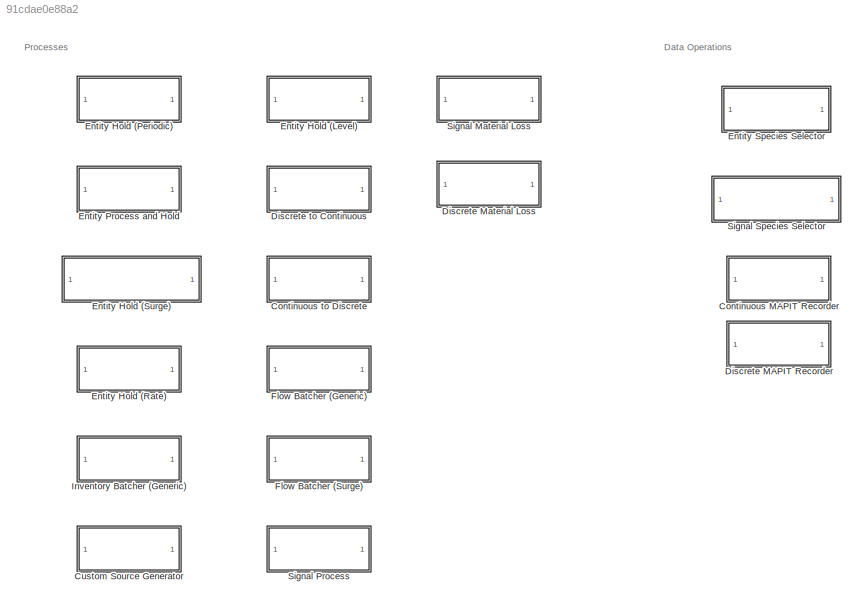
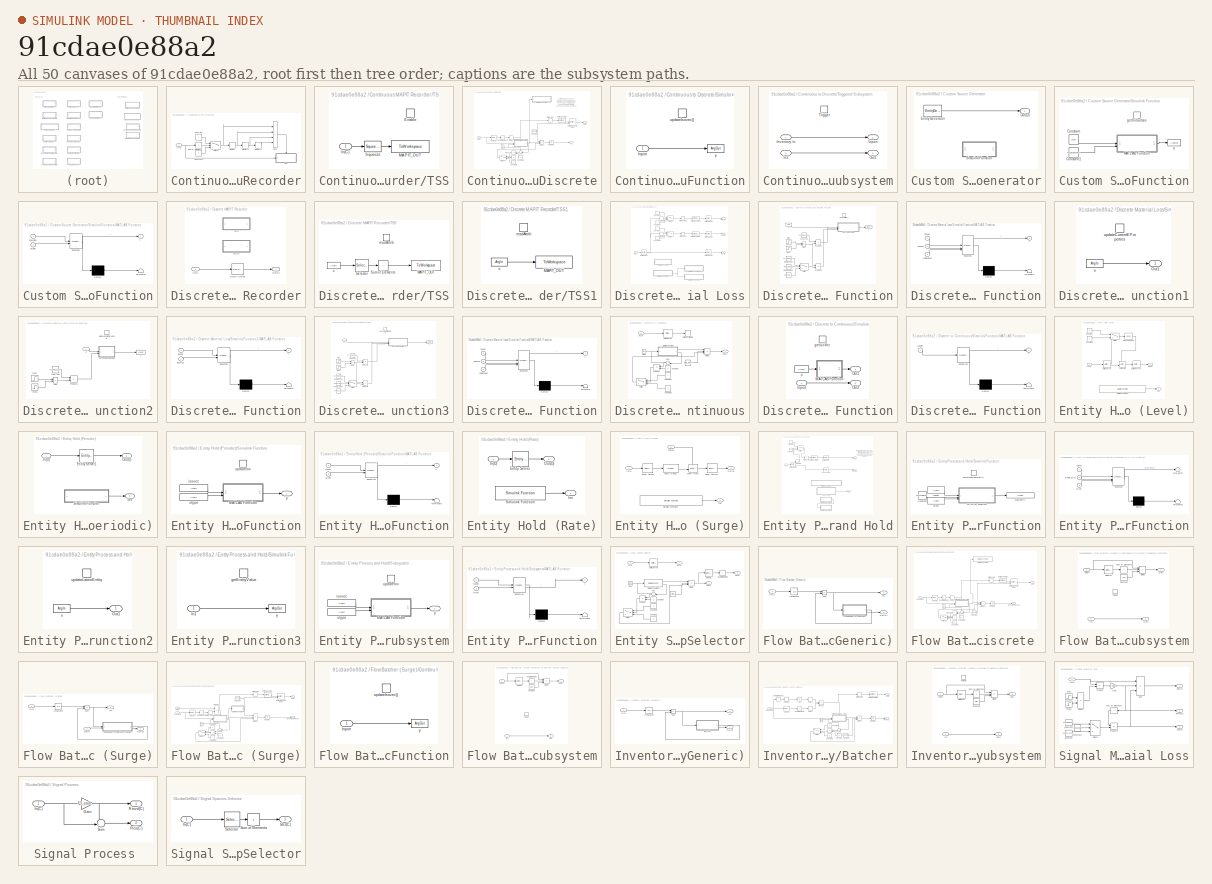
[diagram: thumbnail index - all 50 canvases of the model, root first then tree order]
MODEL slx_91cdae0e88a2
KIND library
CONFIG AbsTol = auto
CONFIG EnableMultiTasking = off
CONFIG FixedStep = auto
CONFIG MaxStep = auto
CONFIG MinStep = auto
CONFIG RelTol = 1e-3
CONFIG SampleTimeConstraint = Unconstrained
CONFIG SolverName = VariableStepAuto
CONFIG StartTime = 0.0
CONFIG StopTime = 10.0
BLOCK [SubSystem] Continuous MAPIT Recorder
BLOCK [Constant] Continuous MAPIT Recorder/Constant
BLOCK [Constant] Continuous MAPIT Recorder/Constant1
  Value = 0
BLOCK [Inport] Continuous MAPIT Recorder/In(C)
BLOCK [Memory] Continuous MAPIT Recorder/Memory
BLOCK [Memory] Continuous MAPIT Recorder/Memory1
BLOCK [Memory] Continuous MAPIT Recorder/Memory2
BLOCK [Sum] Continuous MAPIT Recorder/Sum
  IconShape = rectangular
  Inputs = ++++
BLOCK [Sum] Continuous MAPIT Recorder/Sum of Elements
  IconShape = rectangular
  Inputs = +
BLOCK [Switch] Continuous MAPIT Recorder/Switch
  Criteria = u2 ~= 0
  InputSameDT = off
  SaturateOnIntegerOverflow = off
BLOCK [SubSystem] Continuous MAPIT Recorder/TSS
  TreatAsAtomicUnit = on
BLOCK [EnablePort] Continuous MAPIT Recorder/TSS/Enable
BLOCK [Inport] Continuous MAPIT Recorder/TSS/In(C)
BLOCK [ToWorkspace] Continuous MAPIT Recorder/TSS/MAPIT_OUT
  FixptAsFi = on
  MaxDataPoints = inf
  SampleTime = -1
  SaveFormat = Structure With Time
  VariableName = simout1
BLOCK [Squeeze] Continuous MAPIT Recorder/TSS/Squeeze
BLOCK [SubSystem] Continuous to Discrete
BLOCK [Clock] Continuous to Discrete/Clock
BLOCK [Constant] Continuous to Discrete/Constant3
  NameLocation = top
  Value = -1
BLOCK [Constant] Continuous to Discrete/Constant4
  NameLocation = top
BLOCK [Constant] Continuous to Discrete/Constant5
  NameLocation = top
  Value = 0
BLOCK [Product] Continuous to Discrete/Divide1
  Inputs = /**
BLOCK [EntityGenerator] Continuous to Discrete/Entity Generator
  AttributeInitialValue = zeros(1677,1)|1
  AttributeName = isovec|auxparam
  EntityType = Structured
  EntityTypeName = Entity
  GenerateAction = entity.isovec = updateIsovec();
  GenerationMethod = Event-based
  InputPortMap = u0
  InputPortMessageModes = m
  OutputPortMap = o3
  OutputPortMessageModes = m
BLOCK [EntityTransportDelay] Continuous to Discrete/Entity Transport Delay
  InputPortMessageModes = m,n
  OutputPortMessageModes = m
BLOCK [HitCross] Continuous to Discrete/Hit Crossing
  HitCrossingDirection = rising
  HitCrossingOffset = 1
  HitCrossingOutputType = Message
  OutputPortMessageModes = m
BLOCK [Inport] Continuous to Discrete/In(C)
BLOCK [Integrator] Continuous to Discrete/Integrator
BLOCK [Outport] Continuous to Discrete/Inv
BLOCK [Outport] Continuous to Discrete/Out(D)
  Port = 2
BLOCK [Product] Continuous to Discrete/Product1
  NameLocation = top
BLOCK [Constant] Continuous to Discrete/Pulse Size
  Value = pulsewidth
BLOCK [Relay] Continuous to Discrete/Relay
  OffSwitchValue = ressize
  OnSwitchValue = size
BLOCK [Selector] Continuous to Discrete/Selector
  IndexOptions = Index vector (dialog)
  Indices = F3_getArrayPos(isoelestring)
  InputPortWidth = 1677
  OutputSizes = 1
BLOCK [SubSystem] Continuous to Discrete/Simulink Function
  TreatAsAtomicUnit = on
BLOCK [Inport] Continuous to Discrete/Simulink Function/Inport
BLOCK [TriggerPort] Continuous to Discrete/Simulink Function/updateIsovec()
  FunctionName = updateIsovec
  FunctionVisibility = scoped
  IsSimulinkFunction = on
  StatesWhenEnabling = held
  TriggerType = function-call
  VariantControl = (inherit)
BLOCK [ArgOut] Continuous to Discrete/Simulink Function/y
  ArgumentName = y
  DisableCoverage = on
  PortDimensions = 1677
BLOCK [Sum] Continuous to Discrete/Sum of Elements
  IconShape = rectangular
  Inputs = +
BLOCK [Sum] Continuous to Discrete/Sum1
  Inputs = +-|
  NameLocation = top
BLOCK [Switch] Continuous to Discrete/Switch1
  AttributesFormatString = -pulseSize
  Criteria = u2 > Threshold
  InputSameDT = off
  NameLocation = top
  SaturateOnIntegerOverflow = off
  Threshold = -pulsewidth
BLOCK [SubSystem] Continuous to Discrete/Triggered Subsystem
  TreatAsAtomicUnit = on
BLOCK [Inport] Continuous to Discrete/Triggered Subsystem/In2
  Port = 2
BLOCK [Outport] Continuous to Discrete/Triggered Subsystem/Inport
BLOCK [Inport] Continuous to Discrete/Triggered Subsystem/Inventory In
BLOCK [Outport] Continuous to Discrete/Triggered Subsystem/Out2
  Port = 2
BLOCK [TriggerPort] Continuous to Discrete/Triggered Subsystem/Trigger
  StatesWhenEnabling = held
  VariantControl = (inherit)
BLOCK [SubSystem] Custom Source Generator
BLOCK [EntityGenerator] Custom Source Generator/Entity Generator
  AttributeInitialValue = zeros(1677,1)|1
  AttributeName = isovec|auxparam
  EntityType = Structured
  EntityTypeName = Entity
  GenerateAction = entity.isovec = getInitialIsos();
  OutputPortMap = o3
  OutputPortMessageModes = m
  Period = period
BLOCK [Outport] Custom Source Generator/Out(D)
BLOCK [SubSystem] Custom Source Generator/Simulink Function
  TreatAsAtomicUnit = on
BLOCK [Constant] Custom Source Generator/Simulink Function/Constant
  Value = size
BLOCK [Constant] Custom Source Generator/Simulink Function/Constant1
  Value = F3_ptableToArray(ptable,true)
BLOCK [SubSystem] Custom Source Generator/Simulink Function/MATLAB Function
  ErrorFcn = Stateflow.Translate.translate
  LibrarySourceBlock = simulink/User-Defined\nFunctions/MATLAB Function
  PermitHierarchicalResolution = ExplicitOnly
  SFBlockType = MATLAB Function
  TreatAsAtomicUnit = on
BLOCK [Demux] Custom Source Generator/Simulink Function/MATLAB Function/ Demux 
  Outputs = 1
BLOCK [S-Function] Custom Source Generator/Simulink Function/MATLAB Function/ SFunction 
  EnableBusSupport = off
  FunctionName = sf_sfun
  PortCounts = [2 2]
  SFcnIsStateOwnerBlock = off
  SFunctionDeploymentMode = off
  Tag = Stateflow S-Function 6
BLOCK [Terminator] Custom Source Generator/Simulink Function/MATLAB Function/ Terminator 
BLOCK [Inport] Custom Source Generator/Simulink Function/MATLAB Function/itemsize
BLOCK [Inport] Custom Source Generator/Simulink Function/MATLAB Function/ptable
  Port = 2
BLOCK [Outport] Custom Source Generator/Simulink Function/MATLAB Function/y
BLOCK [TriggerPort] Custom Source Generator/Simulink Function/getInitialIsos
  FunctionName = getInitialIsos
  FunctionVisibility = scoped
  IsSimulinkFunction = on
  StatesWhenEnabling = held
  TriggerType = function-call
  VariantControl = (inherit)
BLOCK [ArgOut] Custom Source Generator/Simulink Function/y
  ArgumentName = y
  DisableCoverage = on
  PortDimensions = 1677
BLOCK [SubSystem] Discrete MAPIT Recorder
BLOCK [EntityServer] Discrete MAPIT Recorder/Entity Server
  Capacity = 1
  ExitAction = readAttrib(entity.isovec)
  InputPortMap = u2
  InputPortMessageModes = m
  OutputPortMap = o9
  OutputPortMessageModes = m
  ServiceTimeValue = 0
BLOCK [Inport] Discrete MAPIT Recorder/In(D)
BLOCK [Outport] Discrete MAPIT Recorder/Out(D)
BLOCK [SubSystem] Discrete MAPIT Recorder/TSS
  TreatAsAtomicUnit = on
BLOCK [ToWorkspace] Discrete MAPIT Recorder/TSS/MAPIT_OUT
  FixptAsFi = on
  MaxDataPoints = inf
  SampleTime = -1
  SaveFormat = Structure With Time
  VariableName = simout1
BLOCK [Selector] Discrete MAPIT Recorder/TSS/Selector
  IndexOptions = Index vector (dialog)
  Indices = F3_getArrayPos(InString)
  InputPortWidth = 1677
  OutputSizes = 1
BLOCK [Sum] Discrete MAPIT Recorder/TSS/Sum of Elements
  IconShape = rectangular
  Inputs = +
BLOCK [TriggerPort] Discrete MAPIT Recorder/TSS/readAttrib
  FunctionName = readAttrib
  FunctionVisibility = scoped
  IsSimulinkFunction = on
  StatesWhenEnabling = held
  TriggerType = function-call
  VariantControl = (inherit)
BLOCK [ArgIn] Discrete MAPIT Recorder/TSS/u
  ArgumentName = u
  DisableCoverage = on
  PortDimensions = 1677
BLOCK [SubSystem] Discrete MAPIT Recorder/TSS1
  Commented = on
  TreatAsAtomicUnit = on
BLOCK [ToWorkspace] Discrete MAPIT Recorder/TSS1/MAPIT_OUT
  FixptAsFi = on
  MaxDataPoints = inf
  SampleTime = -1
  SaveFormat = Structure With Time
  VariableName = simout1
BLOCK [TriggerPort] Discrete MAPIT Recorder/TSS1/readAttrib
  FunctionName = readAttrib
  FunctionVisibility = scoped
  IsSimulinkFunction = on
  StatesWhenEnabling = held
  TriggerType = function-call
  VariantControl = (inherit)
BLOCK [ArgIn] Discrete MAPIT Recorder/TSS1/u
  ArgumentName = u
  DisableCoverage = on
  PortDimensions = 1677
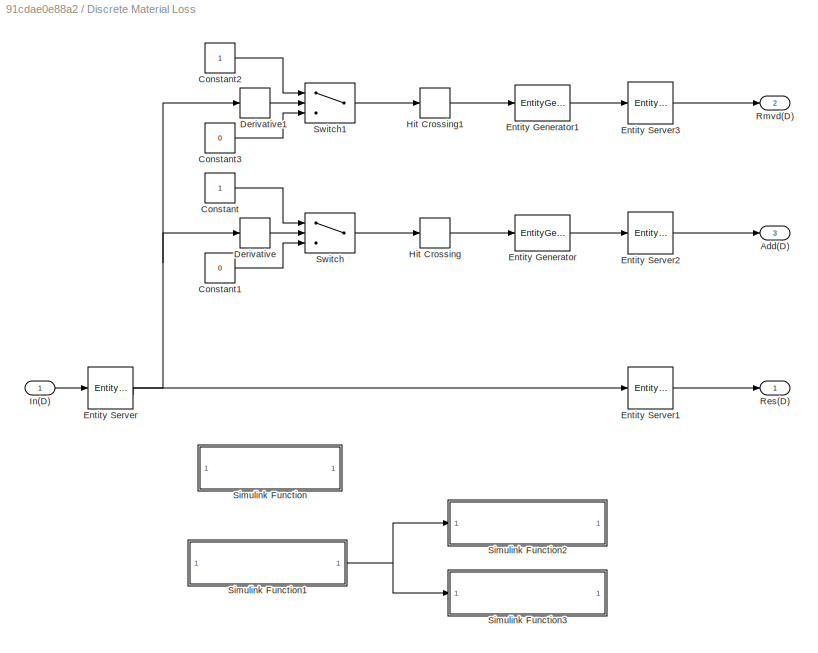
BLOCK [SubSystem] Discrete Material Loss
BLOCK [Outport] Discrete Material Loss/Add(D)
  Port = 3
BLOCK [Constant] Discrete Material Loss/Constant
BLOCK [Constant] Discrete Material Loss/Constant1
  Value = 0
BLOCK [Constant] Discrete Material Loss/Constant2
BLOCK [Constant] Discrete Material Loss/Constant3
  Value = 0
BLOCK [Derivative] Discrete Material Loss/Derivative
BLOCK [Derivative] Discrete Material Loss/Derivative1
BLOCK [EntityGenerator] Discrete Material Loss/Entity Generator
  AttributeInitialValue = zeros(1677,1)|1
  AttributeName = isovec|auxparam
  EntityType = Structured
  EntityTypeName = Entity
  GenerationMethod = Event-based
  InputPortMap = u0
  InputPortMessageModes = m
  OutputPortMap = o3
  OutputPortMessageModes = m
BLOCK [EntityGenerator] Discrete Material Loss/Entity Generator1
  AttributeInitialValue = zeros(1677,1)|1
  AttributeName = isovec|auxparam
  EntityType = Structured
  EntityTypeName = Entity
  GenerationMethod = Event-based
  InputPortMap = u0
  InputPortMessageModes = m
  OutputPortMap = o3
  OutputPortMessageModes = m
BLOCK [EntityServer] Discrete Material Loss/Entity Server
  Capacity = inf
  EntryAction = updateCurrentEProperties(entity.isovec);
  InputPortMap = u2
  InputPortMessageModes = m
  NumberEntitiesDeparted = on
  OutputPortMap = o0,o9
  OutputPortMessageModes = n,m
  ServiceTimeValue = 0
BLOCK [EntityServer] Discrete Material Loss/Entity Server1
  Capacity = inf
  InputPortMap = u2
  InputPortMessageModes = m
  OutputPortMap = o9
  OutputPortMessageModes = m
  ServiceCompleteAction = entity.isovec = applyAllFilters(entity.isovec);
  ServiceTimeValue = 0
BLOCK [EntityServer] Discrete Material Loss/Entity Server2
  Capacity = inf
  InputPortMap = u2
  InputPortMessageModes = m
  OutputPortMap = o9
  OutputPortMessageModes = m
  ServiceCompleteAction = entity.isovec=applyGainFilterGainE();
  ServiceTimeValue = 0
BLOCK [EntityServer] Discrete Material Loss/Entity Server3
  Capacity = inf
  InputPortMap = u2
  InputPortMessageModes = m
  OutputPortMap = o9
  OutputPortMessageModes = m
  ServiceCompleteAction = entity.isovec=applyLossFilterLossE();
  ServiceTimeValue = 0
BLOCK [HitCross] Discrete Material Loss/Hit Crossing
  HitCrossingDirection = rising
  HitCrossingOutputType = Message
BLOCK [HitCross] Discrete Material Loss/Hit Crossing1
  HitCrossingDirection = rising
  HitCrossingOutputType = Message
BLOCK [Inport] Discrete Material Loss/In(D)
BLOCK [Outport] Discrete Material Loss/Res(D)
BLOCK [Outport] Discrete Material Loss/Rmvd(D)
  Port = 2
BLOCK [SubSystem] Discrete Material Loss/Simulink Function
  TreatAsAtomicUnit = on
BLOCK [Constant] Discrete Material Loss/Simulink Function/ 
  Value = zeros(1677,1)
BLOCK [Constant] Discrete Material Loss/Simulink Function/Loss Frac
  Value = F3_getLossFilter(lossFrac,replaceTable)
BLOCK [SubSystem] Discrete Material Loss/Simulink Function/MATLAB Function
  ErrorFcn = Stateflow.Translate.translate
  LibrarySourceBlock = simulink/User-Defined\nFunctions/MATLAB Function
  PermitHierarchicalResolution = ExplicitOnly
  SFBlockType = MATLAB Function
  TreatAsAtomicUnit = on
BLOCK [Demux] Discrete Material Loss/Simulink Function/MATLAB Function/ Demux 
  Outputs = 1
BLOCK [S-Function] Discrete Material Loss/Simulink Function/MATLAB Function/ SFunction 
  EnableBusSupport = off
  FunctionName = sf_sfun
  PortCounts = [3 2]
  SFcnIsStateOwnerBlock = off
  SFunctionDeploymentMode = off
  Tag = Stateflow S-Function 3
BLOCK [Terminator] Discrete Material Loss/Simulink Function/MATLAB Function/ Terminator 
BLOCK [Inport] Discrete Material Loss/Simulink Function/MATLAB Function/isovec
BLOCK [Inport] Discrete Material Loss/Simulink Function/MATLAB Function/lossvec
  Port = 2
BLOCK [Inport] Discrete Material Loss/Simulink Function/MATLAB Function/replacevec
  Port = 3
BLOCK [Outport] Discrete Material Loss/Simulink Function/MATLAB Function/y
BLOCK [Product] Discrete Material Loss/Simulink Function/Product1
BLOCK [Product] Discrete Material Loss/Simulink Function/Product2
BLOCK [Constant] Discrete Material Loss/Simulink Function/Replace Bool
  Value = replaceBool
BLOCK [Constant] Discrete Material Loss/Simulink Function/Replace Vec
  Value = F3_ptableToGain(replaceTable,false)
BLOCK [Step] Discrete Material Loss/Simulink Function/Step
  Time = tStart
BLOCK [Step] Discrete Material Loss/Simulink Function/Step1
  Time = tEnd
BLOCK [Sum] Discrete Material Loss/Simulink Function/Sum
  IconShape = rectangular
  Inputs = +-
BLOCK [Switch] Discrete Material Loss/Simulink Function/Switch
  Criteria = u2 > Threshold
  InputSameDT = off
  SaturateOnIntegerOverflow = off
BLOCK [TriggerPort] Discrete Material Loss/Simulink Function/applyAllFilters
  FunctionName = applyAllFilters
  FunctionVisibility = scoped
  IsSimulinkFunction = on
  StatesWhenEnabling = held
  TriggerType = function-call
  VariantControl = (inherit)
BLOCK [ArgIn] Discrete Material Loss/Simulink Function/u
  ArgumentName = u
  DisableCoverage = on
  PortDimensions = 1677
BLOCK [ArgOut] Discrete Material Loss/Simulink Function/y
  ArgumentName = y
  DisableCoverage = on
  PortDimensions = 1677
BLOCK [SubSystem] Discrete Material Loss/Simulink Function1
  TreatAsAtomicUnit = on
BLOCK [Outport] Discrete Material Loss/Simulink Function1/Out1
BLOCK [ArgIn] Discrete Material Loss/Simulink Function1/u
  ArgumentName = u
  DisableCoverage = on
  PortDimensions = 1677
BLOCK [TriggerPort] Discrete Material Loss/Simulink Function1/updateCurrentEProperties
  FunctionName = updateCurrentEProperties
  FunctionVisibility = scoped
  IsSimulinkFunction = on
  StatesWhenEnabling = held
  TriggerType = function-call
  VariantControl = (inherit)
BLOCK [SubSystem] Discrete Material Loss/Simulink Function2
  TreatAsAtomicUnit = on
BLOCK [Constant] Discrete Material Loss/Simulink Function2/Loss Vec
  Value = F3_getLossFilter(lossFrac,lossOverrideTab)
BLOCK [SubSystem] Discrete Material Loss/Simulink Function2/MATLAB Function
  ErrorFcn = Stateflow.Translate.translate
  LibrarySourceBlock = simulink/User-Defined\nFunctions/MATLAB Function
  PermitHierarchicalResolution = ExplicitOnly
  SFBlockType = MATLAB Function
  TreatAsAtomicUnit = on
BLOCK [Demux] Discrete Material Loss/Simulink Function2/MATLAB Function/ Demux 
  Outputs = 1
BLOCK [S-Function] Discrete Material Loss/Simulink Function2/MATLAB Function/ SFunction 
  EnableBusSupport = off
  FunctionName = sf_sfun
  PortCounts = [2 2]
  SFcnIsStateOwnerBlock = off
  SFunctionDeploymentMode = off
  Tag = Stateflow S-Function 5
BLOCK [Terminator] Discrete Material Loss/Simulink Function2/MATLAB Function/ Terminator 
BLOCK [Inport] Discrete Material Loss/Simulink Function2/MATLAB Function/isovec
BLOCK [Inport] Discrete Material Loss/Simulink Function2/MATLAB Function/lossfrac
  Port = 2
BLOCK [Outport] Discrete Material Loss/Simulink Function2/MATLAB Function/y
BLOCK [Product] Discrete Material Loss/Simulink Function2/Product1
BLOCK [Step] Discrete Material Loss/Simulink Function2/Step
  Time = tStart
BLOCK [Step] Discrete Material Loss/Simulink Function2/Step1
  Time = tEnd
BLOCK [Sum] Discrete Material Loss/Simulink Function2/Sum
  IconShape = rectangular
  Inputs = +-
BLOCK [TriggerPort] Discrete Material Loss/Simulink Function2/applyLossFilterLossE
  FunctionName = applyLossFilterLossE
  FunctionVisibility = scoped
  IsSimulinkFunction = on
  StatesWhenEnabling = held
  TriggerType = function-call
  VariantControl = (inherit)
BLOCK [Inport] Discrete Material Loss/Simulink Function2/u
BLOCK [ArgOut] Discrete Material Loss/Simulink Function2/y
  ArgumentName = y
  DisableCoverage = on
  PortDimensions = 1677
BLOCK [SubSystem] Discrete Material Loss/Simulink Function3
  TreatAsAtomicUnit = on
BLOCK [Constant] Discrete Material Loss/Simulink Function3/ 
  Value = zeros(1677,1)
BLOCK [Inport] Discrete Material Loss/Simulink Function3/In1
BLOCK [Constant] Discrete Material Loss/Simulink Function3/Loss Vec
  Value = F3_getLossFilter(lossFrac,lossOverrideTab)
BLOCK [SubSystem] Discrete Material Loss/Simulink Function3/MATLAB Function
  ErrorFcn = Stateflow.Translate.translate
  LibrarySourceBlock = simulink/User-Defined\nFunctions/MATLAB Function
  PermitHierarchicalResolution = ExplicitOnly
  SFBlockType = MATLAB Function
  TreatAsAtomicUnit = on
BLOCK [Demux] Discrete Material Loss/Simulink Function3/MATLAB Function/ Demux 
  Outputs = 1
BLOCK [S-Function] Discrete Material Loss/Simulink Function3/MATLAB Function/ SFunction 
  EnableBusSupport = off
  FunctionName = sf_sfun
  PortCounts = [3 2]
  SFcnIsStateOwnerBlock = off
  SFunctionDeploymentMode = off
  Tag = Stateflow S-Function 8
BLOCK [Terminator] Discrete Material Loss/Simulink Function3/MATLAB Function/ Terminator 
BLOCK [Inport] Discrete Material Loss/Simulink Function3/MATLAB Function/isovec
BLOCK [Inport] Discrete Material Loss/Simulink Function3/MATLAB Function/lossvec
  Port = 2
BLOCK [Inport] Discrete Material Loss/Simulink Function3/MATLAB Function/replacevec
  Port = 3
BLOCK [Outport] Discrete Material Loss/Simulink Function3/MATLAB Function/y
BLOCK [Product] Discrete Material Loss/Simulink Function3/Product1
BLOCK [Product] Discrete Material Loss/Simulink Function3/Product2
BLOCK [Constant] Discrete Material Loss/Simulink Function3/Replace Bool
  Value = replaceBool
BLOCK [Constant] Discrete Material Loss/Simulink Function3/Replace Vec
  Value = F3_ptableToGain(replaceTable,false)
BLOCK [Step] Discrete Material Loss/Simulink Function3/Step
  Time = tStart
BLOCK [Step] Discrete Material Loss/Simulink Function3/Step1
  Time = tEnd
BLOCK [Sum] Discrete Material Loss/Simulink Function3/Sum
  IconShape = rectangular
  Inputs = +-
BLOCK [Switch] Discrete Material Loss/Simulink Function3/Switch
  Criteria = u2 > Threshold
  InputSameDT = off
  SaturateOnIntegerOverflow = off
BLOCK [TriggerPort] Discrete Material Loss/Simulink Function3/applyGainFilterGainE
  FunctionName = applyGainFilterGainE
  FunctionVisibility = scoped
  IsSimulinkFunction = on
  StatesWhenEnabling = held
  TriggerType = function-call
  VariantControl = (inherit)
BLOCK [ArgOut] Discrete Material Loss/Simulink Function3/y
  ArgumentName = y
  DisableCoverage = on
  PortDimensions = 1677
BLOCK [Switch] Discrete Material Loss/Switch
  Criteria = u2 > Threshold
  InputSameDT = off
  SaturateOnIntegerOverflow = off
BLOCK [Switch] Discrete Material Loss/Switch1
  Criteria = u2 > Threshold
  InputSameDT = off
  SaturateOnIntegerOverflow = off
BLOCK [SubSystem] Discrete to Continuous
BLOCK [Constant] Discrete to Continuous/ 
  Value = width_internal
BLOCK [Clock] Discrete to Continuous/Clock
BLOCK [Constant] Discrete to Continuous/Constant
  NameLocation = top
  Value = -1
BLOCK [Constant] Discrete to Continuous/Constant1
  NameLocation = top
BLOCK [Constant] Discrete to Continuous/Constant2
  NameLocation = top
  Value = 0
BLOCK [Product] Discrete to Continuous/Divide
  Inputs = */*
BLOCK [EntityServer] Discrete to Continuous/Entity Server
  Capacity = 1
  ExitAction = getIsoVec(entity.isovec);
  InputPortMap = u2
  InputPortMessageModes = m
  OutputPortMap = o9
  OutputPortMessageModes = m
BLOCK [EntityTerminator] Discrete to Continuous/Entity Terminator
  InputPortMap = u0
  InputPortMessageModes = m
BLOCK [Inport] Discrete to Continuous/In(D)
BLOCK [Outport] Discrete to Continuous/Out(C)
BLOCK [Product] Discrete to Continuous/Product
  NameLocation = top
BLOCK [SubSystem] Discrete to Continuous/Simulink Function
  TreatAsAtomicUnit = on
BLOCK [Inport] Discrete to Continuous/Simulink Function/Inport
BLOCK [SubSystem] Discrete to Continuous/Simulink Function/MATLAB Function
  ErrorFcn = Stateflow.Translate.translate
  LibrarySourceBlock = simulink/User-Defined\nFunctions/MATLAB Function
  PermitHierarchicalResolution = ExplicitOnly
  SFBlockType = MATLAB Function
  TreatAsAtomicUnit = on
BLOCK [Demux] Discrete to Continuous/Simulink Function/MATLAB Function/ Demux 
  Outputs = 1
BLOCK [S-Function] Discrete to Continuous/Simulink Function/MATLAB Function/ SFunction 
  EnableBusSupport = off
  FunctionName = sf_sfun
  PortCounts = [1 2]
  SFcnIsStateOwnerBlock = off
  SFunctionDeploymentMode = off
  Tag = Stateflow S-Function 4
BLOCK [Terminator] Discrete to Continuous/Simulink Function/MATLAB Function/ Terminator 
BLOCK [Inport] Discrete to Continuous/Simulink Function/MATLAB Function/isovec
BLOCK [Outport] Discrete to Continuous/Simulink Function/MATLAB Function/y
BLOCK [Outport] Discrete to Continuous/Simulink Function/Out1
BLOCK [Outport] Discrete to Continuous/Simulink Function/Out2
  Port = 2
BLOCK [TriggerPort] Discrete to Continuous/Simulink Function/getIsoVec
  FunctionName = getIsoVec
  FunctionVisibility = scoped
  IsSimulinkFunction = on
  StatesWhenEnabling = held
  TriggerType = function-call
  VariantControl = (inherit)
BLOCK [ArgIn] Discrete to Continuous/Simulink Function/u
  ArgumentName = u
  DisableCoverage = on
  PortDimensions = 1677
BLOCK [Sum] Discrete to Continuous/Sum
  Inputs = +-|
  NameLocation = top
BLOCK [Switch] Discrete to Continuous/Switch
  Criteria = u2 > Threshold
  InputSameDT = off
  NameLocation = top
  SaturateOnIntegerOverflow = off
  Threshold = -1*width_internal
BLOCK [SubSystem] Entity Hold (Level)
BLOCK [Constant] Entity Hold (Level)/Constant
BLOCK [Constant] Entity Hold (Level)/Constant1
  Value = -1
BLOCK [EntityGate] Entity Hold (Level)/Entity Gate
  InputPortMap = u0,u1
  InputPortMessageModes = m,m
  OutputPortMap = o0
  OutputPortMessageModes = m
BLOCK [EntityServer] Entity Hold (Level)/Entity Server
  Capacity = inf
  EntryAction = updateInv(entity.isovec,1)
  InputPortMap = u2
  InputPortMessageModes = m
  NumberEntitiesInBlock = on
  OutputPortMap = o1,o9
  OutputPortMessageModes = n,m
  ServiceTimeValue = 0
BLOCK [EntityServer] Entity Hold (Level)/Entity Server1
  Capacity = 1
  ExitAction = updateInv(entity.isovec,-1)
  InputPortMap = u2
  InputPortMessageModes = m
  OutputPortMap = o9
  OutputPortMessageModes = m
  ServiceTimeValue = time
BLOCK [Inport] Entity Hold (Level)/In(D)
BLOCK [Outport] Entity Hold (Level)/Inv
  Port = 2
BLOCK [Send] Entity Hold (Level)/Message Send
  InputPortMap = u1
  OutputPortMessageModes = m
BLOCK [Outport] Entity Hold (Level)/Out(D)
BLOCK [Reference] Entity Hold (Level)/Simulink Function1  REF=$bdroot/Entity Hold (Periodic)/Simulink Function
  LibrarySourceBlock = sldelib/Simulink Function
  SourceBlock = $bdroot/Entity Hold (Periodic)/Simulink Function
  SourceType = SubSystem
BLOCK [Switch] Entity Hold (Level)/Switch
  InputSameDT = off
  SaturateOnIntegerOverflow = off
  Threshold = nitems
BLOCK [SubSystem] Entity Hold (Periodic)
BLOCK [EntityServer] Entity Hold (Periodic)/Entity Server1
  Capacity = inf
  EntryAction = updateInv(entity.isovec,1)
  ExitAction = updateInv(entity.isovec,-1)
  InputPortMap = u2
  InputPortMessageModes = m
  OutputPortMap = o9
  OutputPortMessageModes = m
  ServiceTimeValue = t_process
BLOCK [Inport] Entity Hold (Periodic)/In(D) 
BLOCK [Outport] Entity Hold (Periodic)/Inv
  Port = 2
BLOCK [Outport] Entity Hold (Periodic)/Out(D)
BLOCK [SubSystem] Entity Hold (Periodic)/Simulink Function
  LibrarySourceBlock = sldelib/Simulink Function
  TreatAsAtomicUnit = on
BLOCK [SubSystem] Entity Hold (Periodic)/Simulink Function/MATLAB Function
  ErrorFcn = Stateflow.Translate.translate
  LibrarySourceBlock = simulink/User-Defined\nFunctions/MATLAB Function
  PermitHierarchicalResolution = ExplicitOnly
  SFBlockType = MATLAB Function
  TreatAsAtomicUnit = on
BLOCK [Demux] Entity Hold (Periodic)/Simulink Function/MATLAB Function/ Demux 
  Outputs = 1
BLOCK [S-Function] Entity Hold (Periodic)/Simulink Function/MATLAB Function/ SFunction 
  EnableBusSupport = off
  FunctionName = sf_sfun
  PortCounts = [2 2]
  SFcnIsStateOwnerBlock = off
  SFunctionDeploymentMode = off
  Tag = Stateflow S-Function 2
BLOCK [Terminator] Entity Hold (Periodic)/Simulink Function/MATLAB Function/ Terminator 
BLOCK [Inport] Entity Hold (Periodic)/Simulink Function/MATLAB Function/isovec
BLOCK [Inport] Entity Hold (Periodic)/Simulink Function/MATLAB Function/utype
  Port = 2
BLOCK [Outport] Entity Hold (Periodic)/Simulink Function/MATLAB Function/y
BLOCK [ArgIn] Entity Hold (Periodic)/Simulink Function/isovec
  ArgumentName = isovec
  DisableCoverage = on
  PortDimensions = 1677
BLOCK [TriggerPort] Entity Hold (Periodic)/Simulink Function/updateInv
  FunctionName = updateInv
  FunctionVisibility = scoped
  IsSimulinkFunction = on
  StatesWhenEnabling = held
  TriggerType = function-call
  VariantControl = (inherit)
BLOCK [ArgIn] Entity Hold (Periodic)/Simulink Function/utype
  ArgumentName = utype
  DisableCoverage = on
  Port = 2
BLOCK [Outport] Entity Hold (Periodic)/Simulink Function/y
BLOCK [SubSystem] Entity Hold (Rate)
BLOCK [EntityServer] Entity Hold (Rate)/Entity Server
  Capacity = inf
  InputPortMap = u2
  InputPortMessageModes = m
  OutputPortMap = o9
  OutputPortMessageModes = m
  ServiceTimeValue = 1/rate
BLOCK [Inport] Entity Hold (Rate)/In(D)
BLOCK [Outport] Entity Hold (Rate)/Inv
  Port = 2
BLOCK [Outport] Entity Hold (Rate)/Out(D)
BLOCK [Reference] Entity Hold (Rate)/Simulink Function  REF=$bdroot/Entity Hold (Periodic)/Simulink Function
  LibrarySourceBlock = sldelib/Simulink Function
  SourceBlock = $bdroot/Entity Hold (Periodic)/Simulink Function
  SourceType = SubSystem
BLOCK [SubSystem] Entity Hold (Surge)
BLOCK [EntityGate] Entity Hold (Surge)/Entity Gate
  InputPortMap = u0,u1
  InputPortMessageModes = m,m
  OutputPortMap = o0
  OutputPortMessageModes = m
BLOCK [Queue] Entity Hold (Surge)/Entity Queue
  Capacity = inf
  InputPortMap = u0
  InputPortMessageModes = m
  OutputPortMap = o5
  OutputPortMessageModes = m
BLOCK [EntityServer] Entity Hold (Surge)/Entity Server
  Capacity = inf
  EntryAction = updateInv(entity.isovec,1)
  InputPortMap = u2
  InputPortMessageModes = m
  OutputPortMap = o9
  OutputPortMessageModes = m
  ServiceTimeValue = t_process
BLOCK [EntityServer] Entity Hold (Surge)/Entity Server1
  Capacity = inf
  ExitAction = updateInv(entity.isovec,-1)
  InputPortMap = u2
  InputPortMessageModes = m
  OutputPortMap = o9
  OutputPortMessageModes = m
  ServiceTimeValue = 0
BLOCK [Inport] Entity Hold (Surge)/In(D)
BLOCK [Outport] Entity Hold (Surge)/Inv
  Port = 2
BLOCK [Outport] Entity Hold (Surge)/Out(D)
BLOCK [Reference] Entity Hold (Surge)/Simulink Function1  REF=$bdroot/Entity Hold (Periodic)/Simulink Function
  LibrarySourceBlock = sldelib/Simulink Function
  SourceBlock = $bdroot/Entity Hold (Periodic)/Simulink Function
  SourceType = SubSystem
BLOCK [Inport] Entity Hold (Surge)/Srg(D)
  Port = 2
BLOCK [SubSystem] Entity Process and Hold
BLOCK [Constant] Entity Process and Hold/Constant
BLOCK [Constant] Entity Process and Hold/Constant1
  Value = 0
BLOCK [Derivative] Entity Process and Hold/Derivative
BLOCK [EntityGenerator] Entity Process and Hold/Entity Generator
  AttributeInitialValue = zeros(1677,1)|1
  AttributeName = isovec|auxparam
  EntityType = Structured
  EntityTypeName = Entity
  GenerateAction = entity.isovec = getEntityValue();
  GenerationMethod = Event-based
  InputPortMap = u0
  InputPortMessageModes = m
  OutputPortMap = o3
  OutputPortMessageModes = m
  Period = Periodicity
BLOCK [EntityServer] Entity Process and Hold/Entity Server
  Capacity = inf
  ExitAction = updateInv(entity.isovec,-1)
  InputPortMap = u2
  InputPortMessageModes = m
  NumberEntitiesDeparted = on
  OutputPortMap = o0,o9
  OutputPortMessageModes = n,m
  ServiceCompleteAction = entity.isovec=calculateNewEntity(entity.isovec,0);
  ServiceTimeValue = t_process
BLOCK [EntityServer] Entity Process and Hold/Entity Server1
  Capacity = inf
  EntryAction = updateInv(entity.isovec,1)\nupdateLatestEntity(entity.isovec);
  InputPortMap = u2
  InputPortMessageModes = m
  NumberEntitiesDeparted = on
  OutputPortMap = o0,o9
  OutputPortMessageModes = n,m
  ServiceTimeValue = 0
BLOCK [HitCross] Entity Process and Hold/Hit Crossing
  HitCrossingDirection = rising
  HitCrossingOutputType = Message
  OutputPortMessageModes = m
BLOCK [Inport] Entity Process and Hold/In(D)
BLOCK [Outport] Entity Process and Hold/Inv
  Port = 3
BLOCK [EntityServer] Entity Process and Hold/Lossy Server
  Capacity = inf
  ExitAction = updateInv(entity.isovec,-1)
  InputPortMap = u2
  InputPortMessageModes = m
  NumberEntitiesDeparted = on
  OutputPortMap = o0,o9
  OutputPortMessageModes = n,m
  ServiceCompleteAction = entity.isovec=calculateNewEntity(entity.isovec,1);
  ServiceTimeValue = t_process
BLOCK [Outport] Entity Process and Hold/Res(D)
BLOCK [Outport] Entity Process and Hold/Rmvd(D)
  Port = 2
BLOCK [SubSystem] Entity Process and Hold/Simulink Function
  LibrarySourceBlock = sldelib/Simulink Function
  TreatAsAtomicUnit = on
BLOCK [Constant] Entity Process and Hold/Simulink Function/Constant
  Value = F3_ptableToArray(ptable,false)
BLOCK [SubSystem] Entity Process and Hold/Simulink Function/MATLAB Function
  ErrorFcn = Stateflow.Translate.translate
  LibrarySourceBlock = simulink/User-Defined\nFunctions/MATLAB Function
  PermitHierarchicalResolution = ExplicitOnly
  SFBlockType = MATLAB Function
  TreatAsAtomicUnit = on
BLOCK [Demux] Entity Process and Hold/Simulink Function/MATLAB Function/ Demux 
  Outputs = 1
BLOCK [S-Function] Entity Process and Hold/Simulink Function/MATLAB Function/ SFunction 
  EnableBusSupport = off
  FunctionName = sf_sfun
  PortCounts = [3 2]
  SFcnIsStateOwnerBlock = off
  SFunctionDeploymentMode = off
  Tag = Stateflow S-Function 7
BLOCK [Terminator] Entity Process and Hold/Simulink Function/MATLAB Function/ Terminator 
BLOCK [Inport] Entity Process and Hold/Simulink Function/MATLAB Function/etype
  Port = 3
BLOCK [Inport] Entity Process and Hold/Simulink Function/MATLAB Function/isovec
BLOCK [Outport] Entity Process and Hold/Simulink Function/MATLAB Function/mod_entity
BLOCK [Inport] Entity Process and Hold/Simulink Function/MATLAB Function/ptable_array
  Port = 2
BLOCK [TriggerPort] Entity Process and Hold/Simulink Function/calculateNewEntity
  FunctionName = calculateNewEntity
  FunctionVisibility = scoped
  IsSimulinkFunction = on
  StatesWhenEnabling = held
  TriggerType = function-call
  VariantControl = (inherit)
BLOCK [ArgIn] Entity Process and Hold/Simulink Function/etype
  ArgumentName = etype
  DisableCoverage = on
  Port = 2
BLOCK [ArgIn] Entity Process and Hold/Simulink Function/isovec
  ArgumentName = isovec
  DisableCoverage = on
  PortDimensions = 1677
BLOCK [ArgOut] Entity Process and Hold/Simulink Function/mod_entity
  ArgumentName = mod_entity
  DisableCoverage = on
  PortDimensions = 1677
BLOCK [SubSystem] Entity Process and Hold/Simulink Function2
  TreatAsAtomicUnit = on
BLOCK [Outport] Entity Process and Hold/Simulink Function2/Out1
BLOCK [ArgIn] Entity Process and Hold/Simulink Function2/u
  ArgumentName = u
  DisableCoverage = on
  PortDimensions = 1677
BLOCK [TriggerPort] Entity Process and Hold/Simulink Function2/updateLatestEntity
  FunctionName = updateLatestEntity
  FunctionVisibility = scoped
  IsSimulinkFunction = on
  StatesWhenEnabling = held
  TriggerType = function-call
  VariantControl = (inherit)
BLOCK [SubSystem] Entity Process and Hold/Simulink Function3
  TreatAsAtomicUnit = on
BLOCK [Inport] Entity Process and Hold/Simulink Function3/In1
BLOCK [TriggerPort] Entity Process and Hold/Simulink Function3/getEntityValue
  FunctionName = getEntityValue
  FunctionVisibility = scoped
  IsSimulinkFunction = on
  StatesWhenEnabling = held
  TriggerType = function-call
  VariantControl = (inherit)
BLOCK [ArgOut] Entity Process and Hold/Simulink Function3/y
  ArgumentName = y
  DisableCoverage = on
  PortDimensions = 1677
BLOCK [SubSystem] Entity Process and Hold/Subsystem
BLOCK [SubSystem] Entity Process and Hold/Subsystem/MATLAB Function
  ErrorFcn = Stateflow.Translate.translate
  PermitHierarchicalResolution = ExplicitOnly
  SFBlockType = MATLAB Function
  TreatAsAtomicUnit = on
BLOCK [Demux] Entity Process and Hold/Subsystem/MATLAB Function/ Demux 
  Outputs = 1
BLOCK [S-Function] Entity Process and Hold/Subsystem/MATLAB Function/ SFunction 
  EnableBusSupport = off
  FunctionName = sf_sfun
  PortCounts = [2 2]
  SFcnIsStateOwnerBlock = off
  SFunctionDeploymentMode = off
  Tag = Stateflow S-Function 9
BLOCK [Terminator] Entity Process and Hold/Subsystem/MATLAB Function/ Terminator 
BLOCK [Inport] Entity Process and Hold/Subsystem/MATLAB Function/isovec
BLOCK [Inport] Entity Process and Hold/Subsystem/MATLAB Function/utype
  Port = 2
BLOCK [Outport] Entity Process and Hold/Subsystem/MATLAB Function/y
BLOCK [ArgIn] Entity Process and Hold/Subsystem/isovec
  ArgumentName = isovec
  DisableCoverage = on
  PortDimensions = 1677
BLOCK [TriggerPort] Entity Process and Hold/Subsystem/updateInv
  FunctionName = updateInv
  FunctionVisibility = scoped
  IsSimulinkFunction = on
  StatesWhenEnabling = held
  TriggerType = function-call
  VariantControl = (inherit)
BLOCK [ArgIn] Entity Process and Hold/Subsystem/utype
  ArgumentName = utype
  DisableCoverage = on
  Port = 2
BLOCK [Outport] Entity Process and Hold/Subsystem/y
BLOCK [Switch] Entity Process and Hold/Switch
  Criteria = u2 > Threshold
  InputSameDT = off
  SaturateOnIntegerOverflow = off
BLOCK [SubSystem] Entity Species Selector
BLOCK [Constant] Entity Species Selector/ 
  Value = width
BLOCK [Clock] Entity Species Selector/Clock
BLOCK [Constant] Entity Species Selector/Constant
  NameLocation = top
  Value = -1
BLOCK [Constant] Entity Species Selector/Constant1
  NameLocation = top
BLOCK [Constant] Entity Species Selector/Constant2
  NameLocation = top
  Value = 0
BLOCK [Product] Entity Species Selector/Divide
  Inputs = **/
BLOCK [EntityServer] Entity Species Selector/Entity Server
  Capacity = inf
  ExitAction = getIsoVec(entity.isovec)
  InputPortMap = u2
  InputPortMessageModes = m
  OutputPortMap = o9
  OutputPortMessageModes = m
  ServiceTimeValue = 0
BLOCK [Outport] Entity Species Selector/Full(C)
  Port = 3
BLOCK [Inport] Entity Species Selector/In(D)
BLOCK [Outport] Entity Species Selector/Out(D) 
BLOCK [Product] Entity Species Selector/Product
  NameLocation = top
BLOCK [Selector] Entity Species Selector/Selector
  IndexOptions = Index vector (dialog)
  Indices = F3_getArrayPos(InString)
  InputPortWidth = 1677
  OutputSizes = 1
BLOCK [Reference] Entity Species Selector/Simulink Function1  REF=$bdroot/Discrete to Continuous/Simulink Function
  SourceBlock = $bdroot/Discrete to Continuous/Simulink Function
  SourceType = SubSystem
BLOCK [Outport] Entity Species Selector/Slct(C)
  Port = 2
BLOCK [Sum] Entity Species Selector/Sum
  Inputs = +-|
  NameLocation = top
BLOCK [Sum] Entity Species Selector/Sum of Elements
  IconShape = rectangular
  Inputs = +
BLOCK [Switch] Entity Species Selector/Switch
  Criteria = u2 > Threshold
  InputSameDT = off
  NameLocation = top
  SaturateOnIntegerOverflow = off
  Threshold = -width
BLOCK [SubSystem] Flow Batcher (Generic)
BLOCK [SubSystem] Flow Batcher (Generic)/Continuous to Discrete 
  Description = requires eval on mask so isn't a direct link of continuous to discrete
BLOCK [Clock] Flow Batcher (Generic)/Continuous to Discrete /Clock
BLOCK [Constant] Flow Batcher (Generic)/Continuous to Discrete /Constant3
  NameLocation = top
  Value = -1
BLOCK [Constant] Flow Batcher (Generic)/Continuous to Discrete /Constant4
  NameLocation = top
BLOCK [Constant] Flow Batcher (Generic)/Continuous to Discrete /Constant5
  NameLocation = top
  Value = 0
BLOCK [Product] Flow Batcher (Generic)/Continuous to Discrete /Divide1
  Inputs = */*
BLOCK [Outport] Flow Batcher (Generic)/Continuous to Discrete /Entity
  Port = 2
BLOCK [EntityGenerator] Flow Batcher (Generic)/Continuous to Discrete /Entity Generator
  AttributeInitialValue = zeros(1677,1)|1
  AttributeName = isovec|auxparam
  EntityType = Structured
  EntityTypeName = Entity
  GenerateAction = entity.isovec = updateIsovec();
  GenerationMethod = Event-based
  InputPortMap = u0
  InputPortMessageModes = m
  OutputPortMap = o3
  OutputPortMessageModes = m
BLOCK [EntityTransportDelay] Flow Batcher (Generic)/Continuous to Discrete /Entity Transport Delay
  InputPortMessageModes = m,n
  OutputPortMessageModes = m
BLOCK [HitCross] Flow Batcher (Generic)/Continuous to Discrete /Hit Crossing
  HitCrossingDirection = rising
  HitCrossingOffset = 1
  HitCrossingOutputType = Message
  OutputPortMessageModes = m
BLOCK [Integrator] Flow Batcher (Generic)/Continuous to Discrete /Integrator
BLOCK [Inport] Flow Batcher (Generic)/Continuous to Discrete /Inventory In
BLOCK [Outport] Flow Batcher (Generic)/Continuous to Discrete /Inventory Reduce
BLOCK [Product] Flow Batcher (Generic)/Continuous to Discrete /Product1
  NameLocation = top
BLOCK [Constant] Flow Batcher (Generic)/Continuous to Discrete /Pulse Size
  Value = pulsewidth
BLOCK [Relay] Flow Batcher (Generic)/Continuous to Discrete /Relay
  OffSwitchValue = size+ressize-eps
  OnSwitchValue = size+ressize
BLOCK [Selector] Flow Batcher (Generic)/Continuous to Discrete /Selector
  IndexOptions = Index vector (dialog)
  Indices = F3_getArrayPos(isoelestring)
  InputPortWidth = 1677
  OutputSizes = 1
BLOCK [Reference] Flow Batcher (Generic)/Continuous to Discrete /Simulink Function  REF=$bdroot/Continuous to Discrete/Simulink Function
  SourceBlock = $bdroot/Continuous to Discrete/Simulink Function
  SourceType = SubSystem
BLOCK [Sum] Flow Batcher (Generic)/Continuous to Discrete /Sum of Elements
  IconShape = rectangular
  Inputs = +
BLOCK [Sum] Flow Batcher (Generic)/Continuous to Discrete /Sum1
  Inputs = +-|
  NameLocation = top
BLOCK [Switch] Flow Batcher (Generic)/Continuous to Discrete /Switch1
  AttributesFormatString = -pulseSize
  Criteria = u2 > Threshold
  InputSameDT = off
  NameLocation = top
  SaturateOnIntegerOverflow = off
  Threshold = -pulsewidth
BLOCK [SubSystem] Flow Batcher (Generic)/Continuous to Discrete /Triggered Subsystem
  AncestorBlock = F3M_commonLib/Continuous to Discrete/Triggered\nSubsystem
  TreatAsAtomicUnit = on
BLOCK [Constant] Flow Batcher (Generic)/Continuous to Discrete /Triggered Subsystem/Constant
  Value = size
BLOCK [Product] Flow Batcher (Generic)/Continuous to Discrete /Triggered Subsystem/Divide
  Inputs = */*
BLOCK [Inport] Flow Batcher (Generic)/Continuous to Discrete /Triggered Subsystem/In2
  Port = 2
BLOCK [Inport] Flow Batcher (Generic)/Continuous to Discrete /Triggered Subsystem/Inport
BLOCK [Outport] Flow Batcher (Generic)/Continuous to Discrete /Triggered Subsystem/Out1
BLOCK [Outport] Flow Batcher (Generic)/Continuous to Discrete /Triggered Subsystem/Out2
  Port = 2
BLOCK [Selector] Flow Batcher (Generic)/Continuous to Discrete /Triggered Subsystem/Selector
  IndexOptions = Index vector (dialog)
  Indices = F3_getArrayPos(isoelestring)
  InputPortWidth = 1677
  OutputSizes = 1
BLOCK [Sum] Flow Batcher (Generic)/Continuous to Discrete /Triggered Subsystem/Sum of Elements
  IconShape = rectangular
  Inputs = +
BLOCK [TriggerPort] Flow Batcher (Generic)/Continuous to Discrete /Triggered Subsystem/Trigger
  StatesWhenEnabling = held
  VariantControl = (inherit)
BLOCK [Inport] Flow Batcher (Generic)/In(C)
BLOCK [Integrator] Flow Batcher (Generic)/Integrator
BLOCK [Outport] Flow Batcher (Generic)/Inv
  Port = 2
BLOCK [Outport] Flow Batcher (Generic)/Out(D)
BLOCK [Sum] Flow Batcher (Generic)/Sum
  IconShape = rectangular
  Inputs = +-
BLOCK [SubSystem] Flow Batcher (Surge)
BLOCK [SubSystem] Flow Batcher (Surge)/Continuous to Discrete (Surge)
BLOCK [Clock] Flow Batcher (Surge)/Continuous to Discrete (Surge)/Clock
BLOCK [Constant] Flow Batcher (Surge)/Continuous to Discrete (Surge)/Constant3
  NameLocation = top
  Value = -1
BLOCK [Constant] Flow Batcher (Surge)/Continuous to Discrete (Surge)/Constant4
  NameLocation = top
BLOCK [Constant] Flow Batcher (Surge)/Continuous to Discrete (Surge)/Constant5
  NameLocation = top
  Value = 0
BLOCK [Product] Flow Batcher (Surge)/Continuous to Discrete (Surge)/Divide1
  Inputs = /**
BLOCK [Outport] Flow Batcher (Surge)/Continuous to Discrete (Surge)/Entity
  Port = 2
BLOCK [EntityGenerator] Flow Batcher (Surge)/Continuous to Discrete (Surge)/Entity Generator
  AttributeInitialValue = zeros(1677,1)|1
  AttributeName = isovec|auxparam
  EntityType = Structured
  EntityTypeName = Entity
  GenerateAction = entity.isovec = updateIsovec();
  GenerationMethod = Event-based
  InputPortMap = u0
  InputPortMessageModes = m
  OutputPortMap = o3
  OutputPortMessageModes = m
BLOCK [EntityTransportDelay] Flow Batcher (Surge)/Continuous to Discrete (Surge)/Entity Transport Delay
  InputPortMessageModes = m,n
  OutputPortMessageModes = m
BLOCK [HitCross] Flow Batcher (Surge)/Continuous to Discrete (Surge)/Hit Crossing
  HitCrossingDirection = rising
  HitCrossingOffset = 1
  HitCrossingOutputType = Message
  OutputPortMessageModes = m
BLOCK [HitCross] Flow Batcher (Surge)/Continuous to Discrete (Surge)/Hit Crossing1
  HitCrossingDirection = rising
  HitCrossingOffset = size+ressize
BLOCK [Integrator] Flow Batcher (Surge)/Continuous to Discrete (Surge)/Integrator
BLOCK [Inport] Flow Batcher (Surge)/Continuous to Discrete (Surge)/Inventory In
BLOCK [Outport] Flow Batcher (Surge)/Continuous to Discrete (Surge)/Inventory Reduce
BLOCK [Product] Flow Batcher (Surge)/Continuous to Discrete (Surge)/Product
BLOCK [Product] Flow Batcher (Surge)/Continuous to Discrete (Surge)/Product1
  NameLocation = top
BLOCK [Constant] Flow Batcher (Surge)/Continuous to Discrete (Surge)/Pulse Size
  Value = pulsewidth
BLOCK [Selector] Flow Batcher (Surge)/Continuous to Discrete (Surge)/Selector
  IndexOptions = Index vector (dialog)
  Indices = F3_getArrayPos(isoelestring)
  InputPortWidth = 1677
  OutputSizes = 1
BLOCK [SubSystem] Flow Batcher (Surge)/Continuous to Discrete (Surge)/Simulink Function
  TreatAsAtomicUnit = on
BLOCK [Inport] Flow Batcher (Surge)/Continuous to Discrete (Surge)/Simulink Function/Inport
BLOCK [TriggerPort] Flow Batcher (Surge)/Continuous to Discrete (Surge)/Simulink Function/updateIsovec()
  FunctionName = updateIsovec
  FunctionVisibility = scoped
  IsSimulinkFunction = on
  StatesWhenEnabling = held
  TriggerType = function-call
  VariantControl = (inherit)
BLOCK [ArgOut] Flow Batcher (Surge)/Continuous to Discrete (Surge)/Simulink Function/y
  ArgumentName = y
  DisableCoverage = on
  PortDimensions = 1677
BLOCK [Sum] Flow Batcher (Surge)/Continuous to Discrete (Surge)/Sum of Elements
  IconShape = rectangular
  Inputs = +
BLOCK [Sum] Flow Batcher (Surge)/Continuous to Discrete (Surge)/Sum1
  Inputs = +-|
  NameLocation = top
BLOCK [Inport] Flow Batcher (Surge)/Continuous to Discrete (Surge)/Surge
  Port = 2
BLOCK [Switch] Flow Batcher (Surge)/Continuous to Discrete (Surge)/Switch1
  AttributesFormatString = -pulseSize
  Criteria = u2 > Threshold
  InputSameDT = off
  NameLocation = top
  SaturateOnIntegerOverflow = off
  Threshold = -pulsewidth
BLOCK [SubSystem] Flow Batcher (Surge)/Continuous to Discrete (Surge)/Triggered Subsystem
  TreatAsAtomicUnit = on
BLOCK [Constant] Flow Batcher (Surge)/Continuous to Discrete (Surge)/Triggered Subsystem/Constant
  Value = size
BLOCK [Product] Flow Batcher (Surge)/Continuous to Discrete (Surge)/Triggered Subsystem/Divide
  Inputs = */*
BLOCK [Inport] Flow Batcher (Surge)/Continuous to Discrete (Surge)/Triggered Subsystem/In2
  Port = 2
BLOCK [Outport] Flow Batcher (Surge)/Continuous to Discrete (Surge)/Triggered Subsystem/Inport
BLOCK [Inport] Flow Batcher (Surge)/Continuous to Discrete (Surge)/Triggered Subsystem/Inport1
BLOCK [Outport] Flow Batcher (Surge)/Continuous to Discrete (Surge)/Triggered Subsystem/Out2
  Port = 2
BLOCK [Selector] Flow Batcher (Surge)/Continuous to Discrete (Surge)/Triggered Subsystem/Selector
  IndexOptions = Index vector (dialog)
  Indices = F3_getArrayPos(isoelestring)
  InputPortWidth = 1677
  OutputSizes = 1
BLOCK [Sum] Flow Batcher (Surge)/Continuous to Discrete (Surge)/Triggered Subsystem/Sum of Elements
  IconShape = rectangular
  Inputs = +
BLOCK [TriggerPort] Flow Batcher (Surge)/Continuous to Discrete (Surge)/Triggered Subsystem/Trigger
  StatesWhenEnabling = held
  VariantControl = (inherit)
BLOCK [Inport] Flow Batcher (Surge)/In(C)
BLOCK [Integrator] Flow Batcher (Surge)/Integrator
BLOCK [Outport] Flow Batcher (Surge)/Inv
  Port = 2
BLOCK [Outport] Flow Batcher (Surge)/Out(D)
BLOCK [Inport] Flow Batcher (Surge)/Srg(C)
  Port = 2
BLOCK [Sum] Flow Batcher (Surge)/Sum
  IconShape = rectangular
  Inputs = +-
BLOCK [SubSystem] Inventory Batcher (Generic)
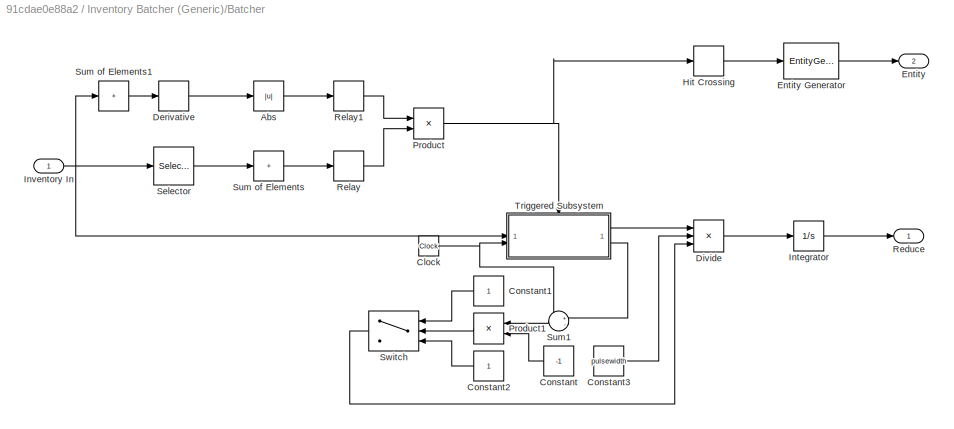
BLOCK [SubSystem] Inventory Batcher (Generic)/Batcher
BLOCK [Abs] Inventory Batcher (Generic)/Batcher/Abs
  SaturateOnIntegerOverflow = off
BLOCK [Clock] Inventory Batcher (Generic)/Batcher/Clock
BLOCK [Constant] Inventory Batcher (Generic)/Batcher/Constant
  NameLocation = top
  Value = -1
BLOCK [Constant] Inventory Batcher (Generic)/Batcher/Constant1
  NameLocation = top
BLOCK [Constant] Inventory Batcher (Generic)/Batcher/Constant2
  NameLocation = top
BLOCK [Constant] Inventory Batcher (Generic)/Batcher/Constant3
  Value = pulsewidth
BLOCK [Derivative] Inventory Batcher (Generic)/Batcher/Derivative
BLOCK [Product] Inventory Batcher (Generic)/Batcher/Divide
  Inputs = */*
BLOCK [Outport] Inventory Batcher (Generic)/Batcher/Entity
  Port = 2
BLOCK [EntityGenerator] Inventory Batcher (Generic)/Batcher/Entity Generator
  AttributeInitialValue = zeros(1677,1)|1
  AttributeName = isovec|auxparam
  EntityType = Structured
  EntityTypeName = Entity
  GenerateAction = entity.isovec = updateIsovec();
  GenerationMethod = Event-based
  InputPortMap = u0
  InputPortMessageModes = m
  OutputPortMap = o3
  OutputPortMessageModes = m
BLOCK [HitCross] Inventory Batcher (Generic)/Batcher/Hit Crossing
  HitCrossingDirection = rising
  HitCrossingOffset = 1
  HitCrossingOutputType = Message
BLOCK [Integrator] Inventory Batcher (Generic)/Batcher/Integrator
BLOCK [Inport] Inventory Batcher (Generic)/Batcher/Inventory In
BLOCK [Product] Inventory Batcher (Generic)/Batcher/Product
BLOCK [Product] Inventory Batcher (Generic)/Batcher/Product1
  NameLocation = top
BLOCK [Outport] Inventory Batcher (Generic)/Batcher/Reduce
BLOCK [Relay] Inventory Batcher (Generic)/Batcher/Relay
  OffSwitchValue = size+ressize-eps
  OnSwitchValue = size+ressize
BLOCK [Relay] Inventory Batcher (Generic)/Batcher/Relay1
  OffOutputValue = 1
  OffSwitchValue = 0
  OnOutputValue = 0
BLOCK [Selector] Inventory Batcher (Generic)/Batcher/Selector
  IndexOptions = Index vector (dialog)
  Indices = F3_getArrayPos(isoelestring)
  InputPortWidth = 1677
  OutputSizes = 1
BLOCK [Sum] Inventory Batcher (Generic)/Batcher/Sum of Elements
  IconShape = rectangular
  Inputs = +
BLOCK [Sum] Inventory Batcher (Generic)/Batcher/Sum of Elements1
  IconShape = rectangular
  Inputs = +
BLOCK [Sum] Inventory Batcher (Generic)/Batcher/Sum1
  Inputs = +-|
  NameLocation = top
BLOCK [Switch] Inventory Batcher (Generic)/Batcher/Switch
  Criteria = u2 > Threshold
  InputSameDT = off
  NameLocation = top
  SaturateOnIntegerOverflow = off
BLOCK [SubSystem] Inventory Batcher (Generic)/Batcher/Triggered Subsystem
  TreatAsAtomicUnit = on
BLOCK [Constant] Inventory Batcher (Generic)/Batcher/Triggered Subsystem/Constant
  Value = size
BLOCK [Product] Inventory Batcher (Generic)/Batcher/Triggered Subsystem/Divide
  Inputs = */*
BLOCK [Inport] Inventory Batcher (Generic)/Batcher/Triggered Subsystem/In2
  Port = 2
BLOCK [Inport] Inventory Batcher (Generic)/Batcher/Triggered Subsystem/Inport
BLOCK [Outport] Inventory Batcher (Generic)/Batcher/Triggered Subsystem/Out1
BLOCK [Outport] Inventory Batcher (Generic)/Batcher/Triggered Subsystem/Out2
  Port = 2
BLOCK [Selector] Inventory Batcher (Generic)/Batcher/Triggered Subsystem/Selector
  IndexOptions = Index vector (dialog)
  Indices = F3_getArrayPos(isoelestring)
  InputPortWidth = 1677
  OutputSizes = 1
BLOCK [Sum] Inventory Batcher (Generic)/Batcher/Triggered Subsystem/Sum of Elements
  IconShape = rectangular
  Inputs = +
BLOCK [TriggerPort] Inventory Batcher (Generic)/Batcher/Triggered Subsystem/Trigger
  StatesWhenEnabling = held
  VariantControl = (inherit)
BLOCK [Inport] Inventory Batcher (Generic)/In(C)
BLOCK [Integrator] Inventory Batcher (Generic)/Integrator
BLOCK [Outport] Inventory Batcher (Generic)/Inv
  Port = 2
BLOCK [Outport] Inventory Batcher (Generic)/Out(D)
BLOCK [Sum] Inventory Batcher (Generic)/Sum
  IconShape = rectangular
  Inputs = +-
BLOCK [SubSystem] Signal Material Loss
BLOCK [Outport] Signal Material Loss/Add(C)
  Port = 3
BLOCK [Constant] Signal Material Loss/Constant
  Value = zeros(1677,1);
BLOCK [Constant] Signal Material Loss/Constant1
  Value = replaceBool
BLOCK [Constant] Signal Material Loss/Constant2
  Value = F3_ptableToGain(replaceTable,false)
BLOCK [Gain] Signal Material Loss/Gain
  Gain = F3_getLossFilter(lossFrac,lossOverrideTab)
BLOCK [Inport] Signal Material Loss/In(C)
BLOCK [Product] Signal Material Loss/Product
BLOCK [Product] Signal Material Loss/Product2
BLOCK [Outport] Signal Material Loss/Res(C)
BLOCK [Outport] Signal Material Loss/Rmvd(C)
  Port = 2
BLOCK [Step] Signal Material Loss/Step
  SampleTime = 0
  Time = tStart
BLOCK [Step] Signal Material Loss/Step1
  SampleTime = 0
  Time = tEnd
BLOCK [Sum] Signal Material Loss/Sum
  IconShape = rectangular
  Inputs = +-+
BLOCK [Sum] Signal Material Loss/Sum of Elements
  IconShape = rectangular
  Inputs = +
  NameLocation = top
BLOCK [Sum] Signal Material Loss/Sum1
  IconShape = rectangular
  Inputs = +-
BLOCK [Switch] Signal Material Loss/Switch
  Criteria = u2 > Threshold
  InputSameDT = off
  SaturateOnIntegerOverflow = off
BLOCK [SubSystem] Signal Process 
BLOCK [Gain] Signal Process /Gain
  Gain = F3_ptableToGain(ptable,false)
BLOCK [Inport] Signal Process /In(C)
BLOCK [Outport] Signal Process /Res(C)
  Port = 2
BLOCK [Outport] Signal Process /Rmvd(C)
BLOCK [Sum] Signal Process /Sum
  Inputs = -+|
BLOCK [SubSystem] Signal Species Selector
BLOCK [Inport] Signal Species Selector/In(C)
BLOCK [Selector] Signal Species Selector/Selector
  IndexOptions = Index vector (dialog)
  Indices = F3_getArrayPos(InString)
  InputPortWidth = 1677
  OutputSizes = 1
BLOCK [Outport] Signal Species Selector/Slct(C)
BLOCK [Sum] Signal Species Selector/Sum of Elements
  IconShape = rectangular
  Inputs = +
ANNOTATION (root): Data Operations
ANNOTATION (root): Processes
ANNOTATION Continuous to Discrete: entity only leaves once the pulse size has elapsed otherwise can create inventory inconsistency (partial pulse in one inventory but entity is instantly counted in downstream process
ANNOTATION Entity Process and Hold: this is pretty cursed because entity replicator has problems if the original is destroyed before the replicatant, leading to instant destruction of the replicant also cant adjust multicast tags from the mask meaning i cant use multicast either (each block needs a unique tag for it to work properly which needs to be assigned programatically) the multiple servers ensures things happen in the proper ...<+5ch>
NET Continuous to Discrete/Clock:1 -> Continuous to Discrete/Sum1:1, Continuous to Discrete/Triggered Subsystem:2
LINE Continuous to Discrete/Constant3:1 -> Continuous to Discrete/Product1:2
LINE Continuous to Discrete/Constant4:1 -> Continuous to Discrete/Switch1:1
LINE Continuous to Discrete/Constant5:1 -> Continuous to Discrete/Switch1:3
LINE Continuous to Discrete/Divide1:1 -> Continuous to Discrete/Integrator:1
LINE Continuous to Discrete/Entity Generator:1 -> Continuous to Discrete/Entity Transport Delay:1
LINE Continuous to Discrete/Entity Transport Delay:1 -> Continuous to Discrete/Out(D):1
LINE Continuous to Discrete/Hit Crossing:1 -> Continuous to Discrete/Entity Generator:1
NET Continuous to Discrete/In(C):1 -> Continuous to Discrete/Selector:1, Continuous to Discrete/Triggered Subsystem:1
LINE Continuous to Discrete/Integrator:1 -> Continuous to Discrete/Inv:1
LINE Continuous to Discrete/Product1:1 -> Continuous to Discrete/Switch1:2
NET Continuous to Discrete/Pulse Size:1 -> Continuous to Discrete/Divide1:1, Continuous to Discrete/Entity Transport Delay:2
NET Continuous to Discrete/Relay:1 -> Continuous to Discrete/Hit Crossing:1, Continuous to Discrete/Triggered Subsystem:trigger
LINE Continuous to Discrete/Selector:1 -> Continuous to Discrete/Sum of Elements:1
LINE Continuous to Discrete/Simulink Function/Inport:1 -> Continuous to Discrete/Simulink Function/y:1
LINE Continuous to Discrete/Sum of Elements:1 -> Continuous to Discrete/Relay:1
LINE Continuous to Discrete/Sum1:1 -> Continuous to Discrete/Product1:1
LINE Continuous to Discrete/Switch1:1 -> Continuous to Discrete/Divide1:3
LINE Continuous to Discrete/Triggered Subsystem/In2:1 -> Continuous to Discrete/Triggered Subsystem/Out2:1
LINE Continuous to Discrete/Triggered Subsystem/Inventory In:1 -> Continuous to Discrete/Triggered Subsystem/Inport:1
NET Continuous to Discrete/Triggered Subsystem:1 -> Continuous to Discrete/Divide1:2, Continuous to Discrete/Simulink Function:1
LINE Continuous to Discrete/Triggered Subsystem:2 -> Continuous to Discrete/Sum1:2
LINE Custom Source Generator/Entity Generator:1 -> Custom Source Generator/Out(D):1
LINE Custom Source Generator/Simulink Function/Constant1:1 -> Custom Source Generator/Simulink Function/MATLAB Function:2
LINE Custom Source Generator/Simulink Function/Constant:1 -> Custom Source Generator/Simulink Function/MATLAB Function:1
LINE Custom Source Generator/Simulink Function/MATLAB Function:1 -> Custom Source Generator/Simulink Function/y:1
LINE Discrete Material Loss/Constant1:1 -> Discrete Material Loss/Switch:3
LINE Discrete Material Loss/Constant2:1 -> Discrete Material Loss/Switch1:1
LINE Discrete Material Loss/Constant3:1 -> Discrete Material Loss/Switch1:3
LINE Discrete Material Loss/Constant:1 -> Discrete Material Loss/Switch:1
LINE Discrete Material Loss/Derivative1:1 -> Discrete Material Loss/Switch1:2
LINE Discrete Material Loss/Derivative:1 -> Discrete Material Loss/Switch:2
LINE Discrete Material Loss/Entity Generator1:1 -> Discrete Material Loss/Entity Server3:1
LINE Discrete Material Loss/Entity Generator:1 -> Discrete Material Loss/Entity Server2:1
LINE Discrete Material Loss/Entity Server1:1 -> Discrete Material Loss/Res(D):1
LINE Discrete Material Loss/Entity Server2:1 -> Discrete Material Loss/Add(D):1
LINE Discrete Material Loss/Entity Server3:1 -> Discrete Material Loss/Rmvd(D):1
NET Discrete Material Loss/Entity Server:1 -> Discrete Material Loss/Derivative1:1, Discrete Material Loss/Derivative:1
LINE Discrete Material Loss/Entity Server:2 -> Discrete Material Loss/Entity Server1:1
LINE Discrete Material Loss/Hit Crossing1:1 -> Discrete Material Loss/Entity Generator1:1
LINE Discrete Material Loss/Hit Crossing:1 -> Discrete Material Loss/Entity Generator:1
LINE Discrete Material Loss/In(D):1 -> Discrete Material Loss/Entity Server:1
LINE Discrete Material Loss/Simulink Function/ :1 -> Discrete Material Loss/Simulink Function/Switch:3
LINE Discrete Material Loss/Simulink Function/Loss Frac:1 -> Discrete Material Loss/Simulink Function/Product1:1
LINE Discrete Material Loss/Simulink Function/MATLAB Function:1 -> Discrete Material Loss/Simulink Function/y:1
LINE Discrete Material Loss/Simulink Function/Product1:1 -> Discrete Material Loss/Simulink Function/MATLAB Function:2
LINE Discrete Material Loss/Simulink Function/Product2:1 -> Discrete Material Loss/Simulink Function/MATLAB Function:3
LINE Discrete Material Loss/Simulink Function/Replace Bool:1 -> Discrete Material Loss/Simulink Function/Switch:2
LINE Discrete Material Loss/Simulink Function/Replace Vec:1 -> Discrete Material Loss/Simulink Function/Switch:1
LINE Discrete Material Loss/Simulink Function/Step1:1 -> Discrete Material Loss/Simulink Function/Sum:2
LINE Discrete Material Loss/Simulink Function/Step:1 -> Discrete Material Loss/Simulink Function/Sum:1
NET Discrete Material Loss/Simulink Function/Sum:1 -> Discrete Material Loss/Simulink Function/Product1:2, Discrete Material Loss/Simulink Function/Product2:1
LINE Discrete Material Loss/Simulink Function/Switch:1 -> Discrete Material Loss/Simulink Function/Product2:2
LINE Discrete Material Loss/Simulink Function/u:1 -> Discrete Material Loss/Simulink Function/MATLAB Function:1
LINE Discrete Material Loss/Simulink Function1/u:1 -> Discrete Material Loss/Simulink Function1/Out1:1
NET Discrete Material Loss/Simulink Function1:1 -> Discrete Material Loss/Simulink Function2:1, Discrete Material Loss/Simulink Function3:1
LINE Discrete Material Loss/Simulink Function2/Loss Vec:1 -> Discrete Material Loss/Simulink Function2/Product1:1
LINE Discrete Material Loss/Simulink Function2/MATLAB Function:1 -> Discrete Material Loss/Simulink Function2/y:1
LINE Discrete Material Loss/Simulink Function2/Product1:1 -> Discrete Material Loss/Simulink Function2/MATLAB Function:2
LINE Discrete Material Loss/Simulink Function2/Step1:1 -> Discrete Material Loss/Simulink Function2/Sum:2
LINE Discrete Material Loss/Simulink Function2/Step:1 -> Discrete Material Loss/Simulink Function2/Sum:1
LINE Discrete Material Loss/Simulink Function2/Sum:1 -> Discrete Material Loss/Simulink Function2/Product1:2
LINE Discrete Material Loss/Simulink Function2/u:1 -> Discrete Material Loss/Simulink Function2/MATLAB Function:1
LINE Discrete Material Loss/Simulink Function3/ :1 -> Discrete Material Loss/Simulink Function3/Switch:3
LINE Discrete Material Loss/Simulink Function3/In1:1 -> Discrete Material Loss/Simulink Function3/MATLAB Function:1
LINE Discrete Material Loss/Simulink Function3/Loss Vec:1 -> Discrete Material Loss/Simulink Function3/Product1:1
LINE Discrete Material Loss/Simulink Function3/MATLAB Function:1 -> Discrete Material Loss/Simulink Function3/y:1
LINE Discrete Material Loss/Simulink Function3/Product1:1 -> Discrete Material Loss/Simulink Function3/MATLAB Function:3
LINE Discrete Material Loss/Simulink Function3/Product2:1 -> Discrete Material Loss/Simulink Function3/MATLAB Function:2
LINE Discrete Material Loss/Simulink Function3/Replace Bool:1 -> Discrete Material Loss/Simulink Function3/Switch:2
LINE Discrete Material Loss/Simulink Function3/Replace Vec:1 -> Discrete Material Loss/Simulink Function3/Switch:1
LINE Discrete Material Loss/Simulink Function3/Step1:1 -> Discrete Material Loss/Simulink Function3/Sum:2
LINE Discrete Material Loss/Simulink Function3/Step:1 -> Discrete Material Loss/Simulink Function3/Sum:1
NET Discrete Material Loss/Simulink Function3/Sum:1 -> Discrete Material Loss/Simulink Function3/Product1:2, Discrete Material Loss/Simulink Function3/Product2:1
LINE Discrete Material Loss/Simulink Function3/Switch:1 -> Discrete Material Loss/Simulink Function3/Product2:2
LINE Discrete Material Loss/Switch1:1 -> Discrete Material Loss/Hit Crossing1:1
LINE Discrete Material Loss/Switch:1 -> Discrete Material Loss/Hit Crossing:1
LINE Discrete to Continuous/ :1 -> Discrete to Continuous/Divide:2
NET Discrete to Continuous/Clock:1 -> Discrete to Continuous/Simulink Function:1, Discrete to Continuous/Sum:1
LINE Discrete to Continuous/Constant1:1 -> Discrete to Continuous/Switch:1
LINE Discrete to Continuous/Constant2:1 -> Discrete to Continuous/Switch:3
LINE Discrete to Continuous/Constant:1 -> Discrete to Continuous/Product:2
LINE Discrete to Continuous/Divide:1 -> Discrete to Continuous/Out(C):1
LINE Discrete to Continuous/Entity Server:1 -> Discrete to Continuous/Entity Terminator:1
LINE Discrete to Continuous/In(D):1 -> Discrete to Continuous/Entity Server:1
LINE Discrete to Continuous/Product:1 -> Discrete to Continuous/Switch:2
LINE Discrete to Continuous/Simulink Function/Inport:1 -> Discrete to Continuous/Simulink Function/Out2:1
LINE Discrete to Continuous/Simulink Function/MATLAB Function:1 -> Discrete to Continuous/Simulink Function/Out1:1
LINE Discrete to Continuous/Simulink Function/u:1 -> Discrete to Continuous/Simulink Function/MATLAB Function:1
LINE Discrete to Continuous/Simulink Function:1 -> Discrete to Continuous/Divide:1
LINE Discrete to Continuous/Simulink Function:2 -> Discrete to Continuous/Sum:2
LINE Discrete to Continuous/Sum:1 -> Discrete to Continuous/Product:1
LINE Discrete to Continuous/Switch:1 -> Discrete to Continuous/Divide:3
LINE Entity Hold (Level)/Constant1:1 -> Entity Hold (Level)/Switch:3
LINE Entity Hold (Level)/Constant:1 -> Entity Hold (Level)/Switch:1
LINE Entity Hold (Level)/Entity Gate:1 -> Entity Hold (Level)/Entity Server1:1
LINE Entity Hold (Level)/Entity Server1:1 -> Entity Hold (Level)/Out(D):1
LINE Entity Hold (Level)/Entity Server:1 -> Entity Hold (Level)/Switch:2
LINE Entity Hold (Level)/Entity Server:2 -> Entity Hold (Level)/Entity Gate:2
LINE Entity Hold (Level)/In(D):1 -> Entity Hold (Level)/Entity Server:1
LINE Entity Hold (Level)/Message Send:1 -> Entity Hold (Level)/Entity Gate:1
LINE Entity Hold (Level)/Simulink Function1:1 -> Entity Hold (Level)/Inv:1
LINE Entity Hold (Level)/Switch:1 -> Entity Hold (Level)/Message Send:1
LINE Entity Hold (Periodic)/Entity Server1:1 -> Entity Hold (Periodic)/Out(D):1
LINE Entity Hold (Periodic)/In(D) :1 -> Entity Hold (Periodic)/Entity Server1:1
LINE Entity Hold (Periodic)/Simulink Function/MATLAB Function:1 -> Entity Hold (Periodic)/Simulink Function/y:1
LINE Entity Hold (Periodic)/Simulink Function/isovec:1 -> Entity Hold (Periodic)/Simulink Function/MATLAB Function:1
LINE Entity Hold (Periodic)/Simulink Function/utype:1 -> Entity Hold (Periodic)/Simulink Function/MATLAB Function:2
LINE Entity Hold (Periodic)/Simulink Function:1 -> Entity Hold (Periodic)/Inv:1
LINE Entity Hold (Rate)/Entity Server:1 -> Entity Hold (Rate)/Out(D):1
LINE Entity Hold (Rate)/In(D):1 -> Entity Hold (Rate)/Entity Server:1
LINE Entity Hold (Rate)/Simulink Function:1 -> Entity Hold (Rate)/Inv:1
LINE Entity Hold (Surge)/Entity Gate:1 -> Entity Hold (Surge)/Entity Server1:1
LINE Entity Hold (Surge)/Entity Queue:1 -> Entity Hold (Surge)/Entity Gate:2
LINE Entity Hold (Surge)/Entity Server1:1 -> Entity Hold (Surge)/Out(D):1
LINE Entity Hold (Surge)/Entity Server:1 -> Entity Hold (Surge)/Entity Queue:1
LINE Entity Hold (Surge)/In(D):1 -> Entity Hold (Surge)/Entity Server:1
LINE Entity Hold (Surge)/Simulink Function1:1 -> Entity Hold (Surge)/Inv:1
LINE Entity Hold (Surge)/Srg(D):1 -> Entity Hold (Surge)/Entity Gate:1
LINE Entity Species Selector/ :1 -> Entity Species Selector/Divide:3
NET Entity Species Selector/Clock:1 -> Entity Species Selector/Simulink Function1:1, Entity Species Selector/Sum:1
LINE Entity Species Selector/Constant1:1 -> Entity Species Selector/Switch:1
LINE Entity Species Selector/Constant2:1 -> Entity Species Selector/Switch:3
LINE Entity Species Selector/Constant:1 -> Entity Species Selector/Product:2
NET Entity Species Selector/Divide:1 -> Entity Species Selector/Full(C):1, Entity Species Selector/Selector:1
LINE Entity Species Selector/Entity Server:1 -> Entity Species Selector/Out(D) :1
LINE Entity Species Selector/In(D):1 -> Entity Species Selector/Entity Server:1
LINE Entity Species Selector/Product:1 -> Entity Species Selector/Switch:2
LINE Entity Species Selector/Selector:1 -> Entity Species Selector/Sum of Elements:1
LINE Entity Species Selector/Simulink Function1:1 -> Entity Species Selector/Divide:1
LINE Entity Species Selector/Simulink Function1:2 -> Entity Species Selector/Sum:2
LINE Entity Species Selector/Sum of Elements:1 -> Entity Species Selector/Slct(C):1
LINE Entity Species Selector/Sum:1 -> Entity Species Selector/Product:1
LINE Entity Species Selector/Switch:1 -> Entity Species Selector/Divide:2
NET Flow Batcher (Generic)/Continuous to Discrete /Clock:1 -> Flow Batcher (Generic)/Continuous to Discrete /Sum1:1, Flow Batcher (Generic)/Continuous to Discrete /Triggered Subsystem:2
LINE Flow Batcher (Generic)/Continuous to Discrete /Constant3:1 -> Flow Batcher (Generic)/Continuous to Discrete /Product1:2
LINE Flow Batcher (Generic)/Continuous to Discrete /Constant4:1 -> Flow Batcher (Generic)/Continuous to Discrete /Switch1:1
LINE Flow Batcher (Generic)/Continuous to Discrete /Constant5:1 -> Flow Batcher (Generic)/Continuous to Discrete /Switch1:3
LINE Flow Batcher (Generic)/Continuous to Discrete /Divide1:1 -> Flow Batcher (Generic)/Continuous to Discrete /Integrator:1
LINE Flow Batcher (Generic)/Continuous to Discrete /Entity Generator:1 -> Flow Batcher (Generic)/Continuous to Discrete /Entity Transport Delay:1
LINE Flow Batcher (Generic)/Continuous to Discrete /Entity Transport Delay:1 -> Flow Batcher (Generic)/Continuous to Discrete /Entity:1
LINE Flow Batcher (Generic)/Continuous to Discrete /Hit Crossing:1 -> Flow Batcher (Generic)/Continuous to Discrete /Entity Generator:1
LINE Flow Batcher (Generic)/Continuous to Discrete /Integrator:1 -> Flow Batcher (Generic)/Continuous to Discrete /Inventory Reduce:1
NET Flow Batcher (Generic)/Continuous to Discrete /Inventory In:1 -> Flow Batcher (Generic)/Continuous to Discrete /Selector:1, Flow Batcher (Generic)/Continuous to Discrete /Triggered Subsystem:1
LINE Flow Batcher (Generic)/Continuous to Discrete /Product1:1 -> Flow Batcher (Generic)/Continuous to Discrete /Switch1:2
NET Flow Batcher (Generic)/Continuous to Discrete /Pulse Size:1 -> Flow Batcher (Generic)/Continuous to Discrete /Divide1:2, Flow Batcher (Generic)/Continuous to Discrete /Entity Transport Delay:2
NET Flow Batcher (Generic)/Continuous to Discrete /Relay:1 -> Flow Batcher (Generic)/Continuous to Discrete /Hit Crossing:1, Flow Batcher (Generic)/Continuous to Discrete /Triggered Subsystem:trigger
LINE Flow Batcher (Generic)/Continuous to Discrete /Selector:1 -> Flow Batcher (Generic)/Continuous to Discrete /Sum of Elements:1
LINE Flow Batcher (Generic)/Continuous to Discrete /Sum of Elements:1 -> Flow Batcher (Generic)/Continuous to Discrete /Relay:1
LINE Flow Batcher (Generic)/Continuous to Discrete /Sum1:1 -> Flow Batcher (Generic)/Continuous to Discrete /Product1:1
LINE Flow Batcher (Generic)/Continuous to Discrete /Switch1:1 -> Flow Batcher (Generic)/Continuous to Discrete /Divide1:3
NET Flow Batcher (Generic)/Continuous to Discrete /Triggered Subsystem:1 -> Flow Batcher (Generic)/Continuous to Discrete /Divide1:1, Flow Batcher (Generic)/Continuous to Discrete /Simulink Function:1
LINE Flow Batcher (Generic)/Continuous to Discrete /Triggered Subsystem:2 -> Flow Batcher (Generic)/Continuous to Discrete /Sum1:2
LINE Flow Batcher (Generic)/Continuous to Discrete :1 -> Flow Batcher (Generic)/Sum:2
LINE Flow Batcher (Generic)/Continuous to Discrete :2 -> Flow Batcher (Generic)/Out(D):1
LINE Flow Batcher (Generic)/In(C):1 -> Flow Batcher (Generic)/Integrator:1
LINE Flow Batcher (Generic)/Integrator:1 -> Flow Batcher (Generic)/Sum:1
NET Flow Batcher (Generic)/Sum:1 -> Flow Batcher (Generic)/Continuous to Discrete :1, Flow Batcher (Generic)/Inv:1
NET Flow Batcher (Surge)/Continuous to Discrete (Surge)/Clock:1 -> Flow Batcher (Surge)/Continuous to Discrete (Surge)/Sum1:1, Flow Batcher (Surge)/Continuous to Discrete (Surge)/Triggered Subsystem:2
LINE Flow Batcher (Surge)/Continuous to Discrete (Surge)/Constant3:1 -> Flow Batcher (Surge)/Continuous to Discrete (Surge)/Product1:2
LINE Flow Batcher (Surge)/Continuous to Discrete (Surge)/Constant4:1 -> Flow Batcher (Surge)/Continuous to Discrete (Surge)/Switch1:1
LINE Flow Batcher (Surge)/Continuous to Discrete (Surge)/Constant5:1 -> Flow Batcher (Surge)/Continuous to Discrete (Surge)/Switch1:3
LINE Flow Batcher (Surge)/Continuous to Discrete (Surge)/Divide1:1 -> Flow Batcher (Surge)/Continuous to Discrete (Surge)/Integrator:1
LINE Flow Batcher (Surge)/Continuous to Discrete (Surge)/Entity Generator:1 -> Flow Batcher (Surge)/Continuous to Discrete (Surge)/Entity Transport Delay:1
LINE Flow Batcher (Surge)/Continuous to Discrete (Surge)/Entity Transport Delay:1 -> Flow Batcher (Surge)/Continuous to Discrete (Surge)/Entity:1
LINE Flow Batcher (Surge)/Continuous to Discrete (Surge)/Hit Crossing1:1 -> Flow Batcher (Surge)/Continuous to Discrete (Surge)/Product:2
LINE Flow Batcher (Surge)/Continuous to Discrete (Surge)/Hit Crossing:1 -> Flow Batcher (Surge)/Continuous to Discrete (Surge)/Entity Generator:1
LINE Flow Batcher (Surge)/Continuous to Discrete (Surge)/Integrator:1 -> Flow Batcher (Surge)/Continuous to Discrete (Surge)/Inventory Reduce:1
NET Flow Batcher (Surge)/Continuous to Discrete (Surge)/Inventory In:1 -> Flow Batcher (Surge)/Continuous to Discrete (Surge)/Selector:1, Flow Batcher (Surge)/Continuous to Discrete (Surge)/Triggered Subsystem:1
LINE Flow Batcher (Surge)/Continuous to Discrete (Surge)/Product1:1 -> Flow Batcher (Surge)/Continuous to Discrete (Surge)/Switch1:2
NET Flow Batcher (Surge)/Continuous to Discrete (Surge)/Product:1 -> Flow Batcher (Surge)/Continuous to Discrete (Surge)/Hit Crossing:1, Flow Batcher (Surge)/Continuous to Discrete (Surge)/Triggered Subsystem:trigger
NET Flow Batcher (Surge)/Continuous to Discrete (Surge)/Pulse Size:1 -> Flow Batcher (Surge)/Continuous to Discrete (Surge)/Divide1:1, Flow Batcher (Surge)/Continuous to Discrete (Surge)/Entity Transport Delay:2
LINE Flow Batcher (Surge)/Continuous to Discrete (Surge)/Selector:1 -> Flow Batcher (Surge)/Continuous to Discrete (Surge)/Sum of Elements:1
LINE Flow Batcher (Surge)/Continuous to Discrete (Surge)/Simulink Function/Inport:1 -> Flow Batcher (Surge)/Continuous to Discrete (Surge)/Simulink Function/y:1
LINE Flow Batcher (Surge)/Continuous to Discrete (Surge)/Sum of Elements:1 -> Flow Batcher (Surge)/Continuous to Discrete (Surge)/Hit Crossing1:1
LINE Flow Batcher (Surge)/Continuous to Discrete (Surge)/Sum1:1 -> Flow Batcher (Surge)/Continuous to Discrete (Surge)/Product1:1
LINE Flow Batcher (Surge)/Continuous to Discrete (Surge)/Surge:1 -> Flow Batcher (Surge)/Continuous to Discrete (Surge)/Product:1
LINE Flow Batcher (Surge)/Continuous to Discrete (Surge)/Switch1:1 -> Flow Batcher (Surge)/Continuous to Discrete (Surge)/Divide1:3
LINE Flow Batcher (Surge)/Continuous to Discrete (Surge)/Triggered Subsystem/Constant:1 -> Flow Batcher (Surge)/Continuous to Discrete (Surge)/Triggered Subsystem/Divide:3
LINE Flow Batcher (Surge)/Continuous to Discrete (Surge)/Triggered Subsystem/Divide:1 -> Flow Batcher (Surge)/Continuous to Discrete (Surge)/Triggered Subsystem/Inport:1
LINE Flow Batcher (Surge)/Continuous to Discrete (Surge)/Triggered Subsystem/In2:1 -> Flow Batcher (Surge)/Continuous to Discrete (Surge)/Triggered Subsystem/Out2:1
NET Flow Batcher (Surge)/Continuous to Discrete (Surge)/Triggered Subsystem/Inport1:1 -> Flow Batcher (Surge)/Continuous to Discrete (Surge)/Triggered Subsystem/Divide:1, Flow Batcher (Surge)/Continuous to Discrete (Surge)/Triggered Subsystem/Selector:1
LINE Flow Batcher (Surge)/Continuous to Discrete (Surge)/Triggered Subsystem/Selector:1 -> Flow Batcher (Surge)/Continuous to Discrete (Surge)/Triggered Subsystem/Sum of Elements:1
LINE Flow Batcher (Surge)/Continuous to Discrete (Surge)/Triggered Subsystem/Sum of Elements:1 -> Flow Batcher (Surge)/Continuous to Discrete (Surge)/Triggered Subsystem/Divide:2
NET Flow Batcher (Surge)/Continuous to Discrete (Surge)/Triggered Subsystem:1 -> Flow Batcher (Surge)/Continuous to Discrete (Surge)/Divide1:2, Flow Batcher (Surge)/Continuous to Discrete (Surge)/Simulink Function:1
LINE Flow Batcher (Surge)/Continuous to Discrete (Surge)/Triggered Subsystem:2 -> Flow Batcher (Surge)/Continuous to Discrete (Surge)/Sum1:2
LINE Flow Batcher (Surge)/Continuous to Discrete (Surge):1 -> Flow Batcher (Surge)/Sum:2
LINE Flow Batcher (Surge)/Continuous to Discrete (Surge):2 -> Flow Batcher (Surge)/Out(D):1
LINE Flow Batcher (Surge)/In(C):1 -> Flow Batcher (Surge)/Integrator:1
LINE Flow Batcher (Surge)/Integrator:1 -> Flow Batcher (Surge)/Sum:1
LINE Flow Batcher (Surge)/Srg(C):1 -> Flow Batcher (Surge)/Continuous to Discrete (Surge):2
NET Flow Batcher (Surge)/Sum:1 -> Flow Batcher (Surge)/Continuous to Discrete (Surge):1, Flow Batcher (Surge)/Inv:1
LINE Inventory Batcher (Generic)/Batcher/Abs:1 -> Inventory Batcher (Generic)/Batcher/Relay1:1
NET Inventory Batcher (Generic)/Batcher/Clock:1 -> Inventory Batcher (Generic)/Batcher/Sum1:1, Inventory Batcher (Generic)/Batcher/Triggered Subsystem:2
LINE Inventory Batcher (Generic)/Batcher/Constant1:1 -> Inventory Batcher (Generic)/Batcher/Switch:1
LINE Inventory Batcher (Generic)/Batcher/Constant2:1 -> Inventory Batcher (Generic)/Batcher/Switch:3
LINE Inventory Batcher (Generic)/Batcher/Constant3:1 -> Inventory Batcher (Generic)/Batcher/Divide:2
LINE Inventory Batcher (Generic)/Batcher/Constant:1 -> Inventory Batcher (Generic)/Batcher/Product1:2
LINE Inventory Batcher (Generic)/Batcher/Derivative:1 -> Inventory Batcher (Generic)/Batcher/Abs:1
LINE Inventory Batcher (Generic)/Batcher/Divide:1 -> Inventory Batcher (Generic)/Batcher/Integrator:1
LINE Inventory Batcher (Generic)/Batcher/Entity Generator:1 -> Inventory Batcher (Generic)/Batcher/Entity:1
LINE Inventory Batcher (Generic)/Batcher/Hit Crossing:1 -> Inventory Batcher (Generic)/Batcher/Entity Generator:1
LINE Inventory Batcher (Generic)/Batcher/Integrator:1 -> Inventory Batcher (Generic)/Batcher/Reduce:1
NET Inventory Batcher (Generic)/Batcher/Inventory In:1 -> Inventory Batcher (Generic)/Batcher/Selector:1, Inventory Batcher (Generic)/Batcher/Sum of Elements1:1, Inventory Batcher (Generic)/Batcher/Triggered Subsystem:1
LINE Inventory Batcher (Generic)/Batcher/Product1:1 -> Inventory Batcher (Generic)/Batcher/Switch:2
NET Inventory Batcher (Generic)/Batcher/Product:1 -> Inventory Batcher (Generic)/Batcher/Hit Crossing:1, Inventory Batcher (Generic)/Batcher/Triggered Subsystem:trigger
LINE Inventory Batcher (Generic)/Batcher/Relay1:1 -> Inventory Batcher (Generic)/Batcher/Product:1
LINE Inventory Batcher (Generic)/Batcher/Relay:1 -> Inventory Batcher (Generic)/Batcher/Product:2
LINE Inventory Batcher (Generic)/Batcher/Selector:1 -> Inventory Batcher (Generic)/Batcher/Sum of Elements:1
LINE Inventory Batcher (Generic)/Batcher/Sum of Elements1:1 -> Inventory Batcher (Generic)/Batcher/Derivative:1
LINE Inventory Batcher (Generic)/Batcher/Sum of Elements:1 -> Inventory Batcher (Generic)/Batcher/Relay:1
LINE Inventory Batcher (Generic)/Batcher/Sum1:1 -> Inventory Batcher (Generic)/Batcher/Product1:1
LINE Inventory Batcher (Generic)/Batcher/Switch:1 -> Inventory Batcher (Generic)/Batcher/Divide:3
LINE Inventory Batcher (Generic)/Batcher/Triggered Subsystem/Constant:1 -> Inventory Batcher (Generic)/Batcher/Triggered Subsystem/Divide:3
LINE Inventory Batcher (Generic)/Batcher/Triggered Subsystem/Divide:1 -> Inventory Batcher (Generic)/Batcher/Triggered Subsystem/Out1:1
LINE Inventory Batcher (Generic)/Batcher/Triggered Subsystem/In2:1 -> Inventory Batcher (Generic)/Batcher/Triggered Subsystem/Out2:1
NET Inventory Batcher (Generic)/Batcher/Triggered Subsystem/Inport:1 -> Inventory Batcher (Generic)/Batcher/Triggered Subsystem/Divide:1, Inventory Batcher (Generic)/Batcher/Triggered Subsystem/Selector:1
LINE Inventory Batcher (Generic)/Batcher/Triggered Subsystem/Selector:1 -> Inventory Batcher (Generic)/Batcher/Triggered Subsystem/Sum of Elements:1
LINE Inventory Batcher (Generic)/Batcher/Triggered Subsystem/Sum of Elements:1 -> Inventory Batcher (Generic)/Batcher/Triggered Subsystem/Divide:2
LINE Inventory Batcher (Generic)/Batcher/Triggered Subsystem:1 -> Inventory Batcher (Generic)/Batcher/Divide:1
LINE Inventory Batcher (Generic)/Batcher/Triggered Subsystem:2 -> Inventory Batcher (Generic)/Batcher/Sum1:2
LINE Inventory Batcher (Generic)/Batcher:1 -> Inventory Batcher (Generic)/Sum:2
LINE Inventory Batcher (Generic)/Batcher:2 -> Inventory Batcher (Generic)/Out(D):1
LINE Inventory Batcher (Generic)/In(C):1 -> Inventory Batcher (Generic)/Integrator:1
LINE Inventory Batcher (Generic)/Integrator:1 -> Inventory Batcher (Generic)/Sum:1
NET Inventory Batcher (Generic)/Sum:1 -> Inventory Batcher (Generic)/Batcher:1, Inventory Batcher (Generic)/Inv:1
LINE Signal Material Loss/Constant1:1 -> Signal Material Loss/Switch:2
LINE Signal Material Loss/Constant2:1 -> Signal Material Loss/Switch:1
LINE Signal Material Loss/Constant:1 -> Signal Material Loss/Switch:3
NET Signal Material Loss/Gain:1 -> Signal Material Loss/Rmvd(C):1, Signal Material Loss/Sum of Elements:1, Signal Material Loss/Sum:2
NET Signal Material Loss/In(C):1 -> Signal Material Loss/Product:1, Signal Material Loss/Sum:1
NET Signal Material Loss/Product2:1 -> Signal Material Loss/Add(C):1, Signal Material Loss/Sum:3
LINE Signal Material Loss/Product:1 -> Signal Material Loss/Gain:1
LINE Signal Material Loss/Step1:1 -> Signal Material Loss/Sum1:2
LINE Signal Material Loss/Step:1 -> Signal Material Loss/Sum1:1
LINE Signal Material Loss/Sum of Elements:1 -> Signal Material Loss/Product2:1
LINE Signal Material Loss/Sum1:1 -> Signal Material Loss/Product:2
LINE Signal Material Loss/Sum:1 -> Signal Material Loss/Res(C):1
LINE Signal Material Loss/Switch:1 -> Signal Material Loss/Product2:2
NET Signal Process /Gain:1 -> Signal Process /Rmvd(C):1, Signal Process /Sum:1
NET Signal Process /In(C):1 -> Signal Process /Gain:1, Signal Process /Sum:2
LINE Signal Process /Sum:1 -> Signal Process /Res(C):1
LINE Signal Species Selector/In(C):1 -> Signal Species Selector/Selector:1
LINE Signal Species Selector/Selector:1 -> Signal Species Selector/Sum of Elements:1
LINE Signal Species Selector/Sum of Elements:1 -> Signal Species Selector/Slct(C):1
note: NET lines group one-source signal fan-out (src -> all destinations, sorted); 1:1 wires keep LINE
CHART Discrete Material Loss/Simulink Function/MATLAB Function states=1 transitions=1
  STATE_LABEL 'eML_blk_kernel()'
  STATE_LABEL 'SCRIPT:\nfunction y = fcn(isovec, lossvec, replacevec)\n\ny = isovec;\ny = y - y.*lossvec;\n\ndiff = isovec - y;\ny = y + sum(diff)*replacevec;\n'
CHART Discrete to Continuous/Simulink Function/MATLAB Function states=1 transitions=1
  STATE_LABEL 'eML_blk_kernel()'
  STATE_LABEL 'SCRIPT:\nfunction y = fcn(isovec)\n\ny = isovec;\n'
CHART Discrete Material Loss/Simulink Function2/MATLAB Function states=1 transitions=1
  STATE_LABEL 'eML_blk_kernel()'
  STATE_LABEL 'SCRIPT:\nfunction y = fcn(isovec, lossfrac)\n\ny = isovec.*lossfrac;\n'
CHART Custom Source Generator/Simulink Function/MATLAB Function states=1 transitions=1
  STATE_LABEL 'eML_blk_kernel()'
  STATE_LABEL 'SCRIPT:\nfunction y = fcn(itemsize,ptable)\n\ny = zeros(1677,1);\ny(int16(ptable(1,:))) = ptable(2,:)*itemsize;\n\n\n\n'
CHART Entity Process and Hold/Simulink Function/MATLAB Function states=1 transitions=1
  STATE_LABEL 'eML_blk_kernel()'
  STATE_LABEL 'SCRIPT:\nfunction mod_entity = fcn(isovec,ptable_array,etype)\n\nmod_entity = F3_calculateLossEntities(isovec,ptable_array,etype);\n'
CHART Discrete Material Loss/Simulink Function3/MATLAB Function states=1 transitions=1
  STATE_LABEL 'eML_blk_kernel()'
  STATE_LABEL 'SCRIPT:\nfunction y = fcn(isovec, lossvec, replacevec)\n\n\nlossT = isovec.*lossvec;\n\ny = sum(lossT)*replacevec;'
CHART Entity Process and Hold/Subsystem/MATLAB Function states=1 transitions=1
  STATE_LABEL 'eML_blk_kernel()'
  STATE_LABEL 'SCRIPT:\nfunction y = fcn(isovec, utype)\n\npersistent inventory\n\nif isempty(inventory)\n    inventory = isovec;\nelse\n    if utype == 1 %addition\n    inventory = inventory+isovec;\n    else %subtraction\n    inventory = inventory-isovec;\n    end\nend\n\n\n\n\ny = inventory;\n'
CHART Entity Hold (Periodic)/Simulink Function/MATLAB Function states=1 transitions=1
  STATE_LABEL 'eML_blk_kernel()'
  STATE_LABEL 'SCRIPT:\nfunction y = fcn(isovec, utype)\n\npersistent inventory\n\nif isempty(inventory)\n    inventory = isovec;\nelse\n    if utype == 1 %addition\n    inventory = inventory+isovec;\n    else %subtraction\n    inventory = inventory-isovec;\n    end\nend\n\n\n\n\ny = inventory;\n'
CHART  states=0 transitions=0
CHART  states=0 transitions=0
CHART  states=0 transitions=0
CHART  states=0 transitions=0
CHART  states=0 transitions=0
CHART  states=0 transitions=0
CHART  states=0 transitions=0
CHART  states=0 transitions=0
